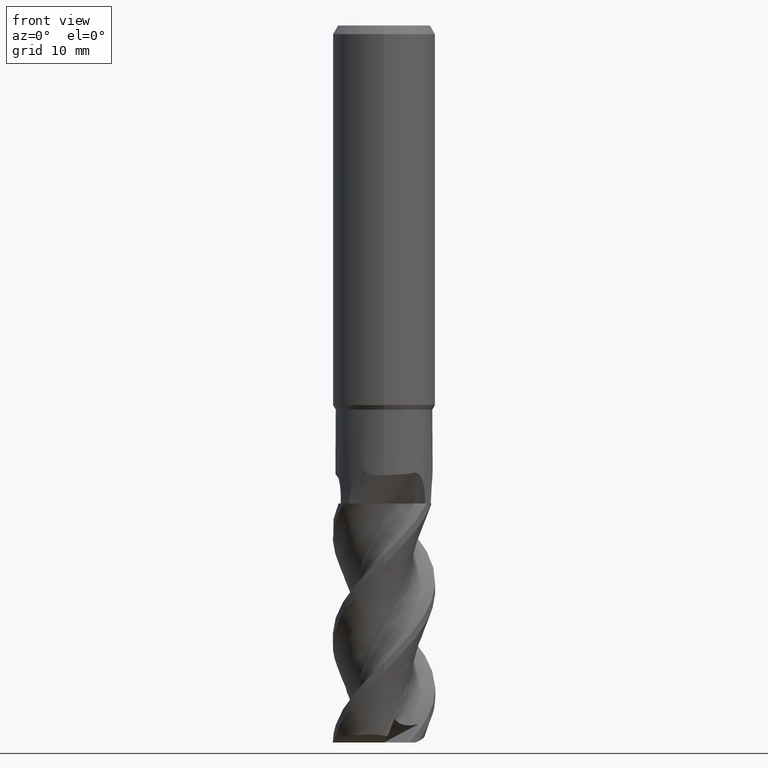
[diagram: clean part render]
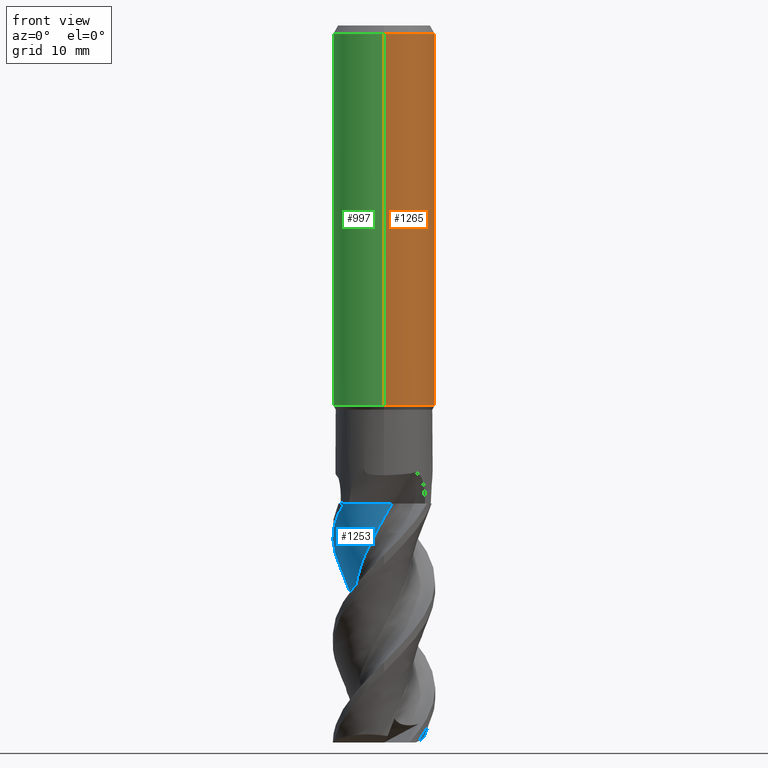
[diagram: same view with three faces highlighted in distinct colors, each labeled with its STEP entity id]
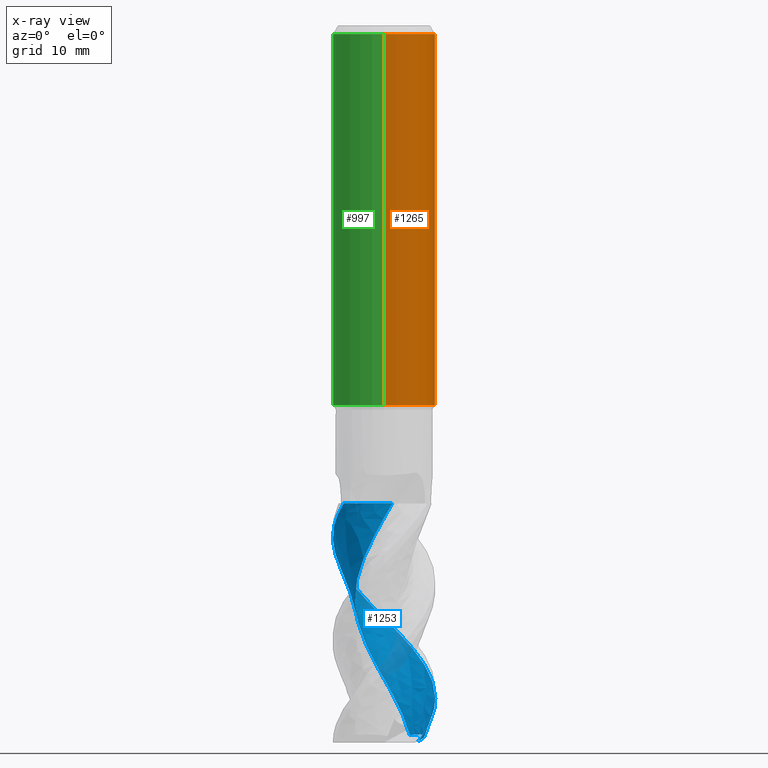
[diagram: x-ray of the same camera — body ghosted, the three highlighted faces saturated]
A machine part, front view with three faces highlighted in distinct colors.
The next image is the same camera in x-ray (body ghosted, the three faces saturated) — at least one of them is partly hidden behind the body in this view.
Their STEP definitions:

[orange] entity #1265 — the highlighted cylindrical surface (partial cylindrical patch) has radius 6 mm, axis along (-0, -0, 1).
#471=VERTEX_POINT('',#1340);
#485=VERTEX_POINT('',#1355);
#497=EDGE_CURVE('',#945,#771,#1367,.T.);
#503=VERTEX_POINT('',#1374);
#521=EDGE_CURVE('',#529,#679,#1395,.T.);
#529=VERTEX_POINT('',#1403);
#541=EDGE_CURVE('',#1009,#529,#1415,.T.);
#543=EDGE_CURVE('',#861,#945,#1417,.T.);
#547=EDGE_CURVE('',#1215,#1045,#1421,.T.);
#575=VERTEX_POINT('',#1454);
#579=VERTEX_POINT('',#1458);
#641=EDGE_CURVE('',#817,#659,#1524,.T.);
#659=VERTEX_POINT('',#1543);
#667=EDGE_CURVE('',#659,#503,#1551,.T.);
#679=VERTEX_POINT('',#1564);
#713=VERTEX_POINT('',#1598);
#761=EDGE_CURVE('',#503,#1215,#1652,.T.);
#771=VERTEX_POINT('',#1662);
#803=EDGE_CURVE('',#579,#1009,#1697,.T.);
#817=VERTEX_POINT('',#1713);
#823=VERTEX_POINT('',#1720);
#861=VERTEX_POINT('',#1762);
#885=EDGE_CURVE('',#471,#919,#1788,.T.);
#911=EDGE_CURVE('',#713,#485,#1817,.T.);
#915=EDGE_CURVE('',#1041,#579,#1821,.T.);
#919=VERTEX_POINT('',#1825);
#945=VERTEX_POINT('',#1852);
#953=EDGE_CURVE('',#861,#713,#1861,.T.);
#959=EDGE_CURVE('',#575,#817,#1867,.T.);
#961=EDGE_CURVE('',#771,#823,#1869,.T.);
#1009=VERTEX_POINT('',#1923);
#1011=EDGE_CURVE('',#1045,#1041,#1925,.T.);
#1041=VERTEX_POINT('',#1957);
#1045=VERTEX_POINT('',#1961);
#1083=EDGE_CURVE('',#471,#823,#2004,.T.);
#1133=EDGE_CURVE('',#679,#575,#2057,.T.);
#1215=VERTEX_POINT('',#2148);
#1225=EDGE_CURVE('',#485,#919,#2159,.T.);
#1265=ADVANCED_FACE('',(#2202,#2203),#2204,.T.);
#1340=CARTESIAN_POINT('',(0.0,6.0,-1.0));
#1355=CARTESIAN_POINT('',(7.34763812293426E-016,-6.0,-44.48));
#1367=LINE('',#3065,#3066);
#1374=CARTESIAN_POINT('',(1.16473800375166,5.88586318075918,-34.2399428821325));
#1395=B_SPLINE_CURVE_WITH_KNOTS('',3,(#3165,#3166,#3167,#3168,#3169,#3170,#3171,#3172,#3173,#3174,#3175,#3176,#3177,#3178,#3179,#3180,#3181,#3182,#3183,#3184,#3185,#3186,#3187,#3188),.UNSPECIFIED.,.F.,.F.,(4,2,2,2,2,2,2,2,2,2,2,4),(4.48073098737521,4.77923143833492,5.07773188929462,5.37623234025433,5.67473279121403,5.97323324217374,6.27097284431785,6.56871244646196,6.86645204860607,7.16419165075017,7.46398622242374,7.7637807940973),.UNSPECIFIED.);
#1403=CARTESIAN_POINT('',(0.0244948463970805,5.99995,-34.4830834817554));
#1415=LINE('',#3226,#3227);
#1417=ELLIPSE('',#3230,8.48528137423857,6.0);
#1421=B_SPLINE_CURVE_WITH_KNOTS('',3,(#3241,#3242,#3243,#3244,#3245,#3246,#3247,#3248,#3249,#3250),.UNSPECIFIED.,.F.,.F.,(4,2,2,2,4),(10.7411366580096,11.1537143579779,11.5662920579463,11.9794511602567,12.3926102625672),.UNSPECIFIED.);
#1454=CARTESIAN_POINT('',(0.0244948463969634,5.99995,-34.7518594477573));
#1458=CARTESIAN_POINT('',(1.06590008682601,5.90456238894165,-32.4801003691609));
#1524=B_SPLINE_CURVE_WITH_KNOTS('',3,(#4101,#4102,#4103,#4104,#4105,#4106,#4107,#4108,#4109,#4110,#4111,#4112,#4113,#4114,#4115,#4116),.UNSPECIFIED.,.F.,.F.,(4,2,2,2,2,2,2,4),(7.84932439692473,8.26261089147826,8.67595374936495,9.08929660725164,9.50263946513833,9.91598232302503,10.3285600608663,10.7411377987076),.UNSPECIFIED.);
#1543=CARTESIAN_POINT('',(0.386800946335366,5.987519104597,-36.4798438705536));
#1551=ELLIPSE('',#4164,18.2879674402186,6.0);
#1564=CARTESIAN_POINT('',(0.764163013666123,5.95113895725387,-34.3871907322697));
#1598=CARTESIAN_POINT('',(0.0,6.0,-44.48));
#1652=LINE('',#4477,#4478);
#1662=CARTESIAN_POINT('',(4.07921561087423,4.4,-18.5));
#1697=B_SPLINE_CURVE_WITH_KNOTS('',3,(#4693,#4694,#4695,#4696,#4697,#4698,#4699,#4700,#4701,#4702,#4703,#4704,#4705,#4706,#4707,#4708,#4709,#4710,#4711,#4712,#4713,#4714,#4715,#4716,#4717,#4718,#4719),.UNSPECIFIED.,.F.,.F.,(4,2,3,2,2,2,2,2,2,2,2,2,4),(-0.72360181149793,-0.361800905748964,0.0,0.361800905748964,0.723601811497929,1.08633909978848,1.44907638807903,1.81023671496141,2.1713970418438,2.53302252441847,2.89464800699314,3.25627348956782,3.61789897214249),.UNSPECIFIED.);
#1713=CARTESIAN_POINT('',(0.0244948463968965,5.99995,-36.5208686000526));
#1720=CARTESIAN_POINT('',(-7.34763812293426E-016,6.0,-16.9));
#1762=CARTESIAN_POINT('',(-7.34763812293427E-016,6.0,-28.1));
#1788=CIRCLE('',#4952,6.0);
#1817=CIRCLE('',#5510,6.0);
#1821=B_SPLINE_CURVE_WITH_KNOTS('',3,(#5515,#5516,#5517,#5518,#5519,#5520,#5521,#5522,#5523,#5524),.UNSPECIFIED.,.F.,.F.,(4,2,2,2,4),(0.826318233423224,1.23947735013484,1.65263646684645,2.06521418068484,2.47779189452323),.UNSPECIFIED.);
#1825=CARTESIAN_POINT('',(7.34763812293426E-016,-6.0,-1.0));
#1852=CARTESIAN_POINT('',(4.07921561087423,4.4,-26.5));
#1861=LINE('',#5696,#5697);
#1867=LINE('',#5720,#5721);
#1869=ELLIPSE('',#5724,8.48528137423857,6.0);
#1923=CARTESIAN_POINT('',(0.0244948463970288,5.99995,-33.8495768693841));
#1925=LINE('',#5832,#5833);
#1957=CARTESIAN_POINT('',(1.78293189712495,5.72897493887121,-33.1668255264546));
#1961=CARTESIAN_POINT('',(1.78293189712495,5.72897493887121,-35.53362882336));
#2004=LINE('',#6321,#6322);
#2057=ELLIPSE('',#6685,6.68957059225716,6.0);
#2148=CARTESIAN_POINT('',(1.16473800375166,5.88586318075918,-36.1583829226563));
#2159=LINE('',#7219,#7220);
#2202=FACE_OUTER_BOUND('',#7797,.T.);
#2203=FACE_BOUND('',#7798,.T.);
#2204=CYLINDRICAL_SURFACE('',#7799,6.0);
#3065=CARTESIAN_POINT('',(4.07921561087423,4.4,-22.5));
#3066=VECTOR('',#9296,1.0);
#3165=CARTESIAN_POINT('',(-1.35048891683626,5.84603965822183,-32.6107881553991));
#3166=CARTESIAN_POINT('',(-1.37056791947492,5.84140122399383,-32.7128902379));
#3167=CARTESIAN_POINT('',(-1.3801338571413,5.83911213596488,-32.8156653721101));
#3168=CARTESIAN_POINT('',(-1.3801338571413,5.83911213596488,-33.0146656727499));
#3169=CARTESIAN_POINT('',(-1.37056791947492,5.84140122399383,-33.1174408069601));
#3170=CARTESIAN_POINT('',(-1.33040991419761,5.85067809244983,-33.3216449719619));
#3171=CARTESIAN_POINT('',(-1.29982790681991,5.85765752699186,-33.4230763600927));
#3172=CARTESIAN_POINT('',(-1.21910237433344,5.87498881723457,-33.6174231884883));
#3173=CARTESIAN_POINT('',(-1.16889486540318,5.88533454584315,-33.7105002458833));
#3174=CARTESIAN_POINT('',(-1.05298647093662,5.90717338619679,-33.8825453657203));
#3175=CARTESIAN_POINT('',(-0.987276929230589,5.91864007661348,-33.9615109491245));
#3176=CARTESIAN_POINT('',(-0.847471723835943,5.94026785846467,-34.1011067518695));
#3177=CARTESIAN_POINT('',(-0.768578560058691,5.95119907739388,-34.1665924311689));
#3178=CARTESIAN_POINT('',(-0.596687956072494,5.97088326336904,-34.2821202967626));
#3179=CARTESIAN_POINT('',(-0.503692932423599,5.97961185586931,-34.33217023021));
#3180=CARTESIAN_POINT('',(-0.309568789074216,5.9927983180408,-34.4126193312277));
#3181=CARTESIAN_POINT('',(-0.2082742472406,5.99725030577251,-34.4430840806747));
#3182=CARTESIAN_POINT('',(-0.00444954483130944,6.00086407059041,-34.483066242046));
#3183=CARTESIAN_POINT('',(0.0980824834947631,6.00001914171547,-34.4925747376966));
#3184=CARTESIAN_POINT('',(0.297152852246949,5.99347032126369,-34.4925747376966));
#3185=CARTESIAN_POINT('',(0.400197319943434,5.98751817149859,-34.4829368958837));
#3186=CARTESIAN_POINT('',(0.604724970802942,5.9703299287894,-34.442604298656));
#3187=CARTESIAN_POINT('',(0.706210942313637,5.95910027839327,-34.4119209385626));
#3188=CARTESIAN_POINT('',(0.803358978589674,5.94597463428153,-34.3714905127439));
#3226=CARTESIAN_POINT('',(0.0244948463969634,5.99995,-34.5009315682017));
#3227=VECTOR('',#9337,1.0);
#3230=AXIS2_PLACEMENT_3D('',#9338,#9339,#9340);
#3241=CARTESIAN_POINT('',(0.796240708344118,5.9469320438673,-36.3551992755855));
#3242=CARTESIAN_POINT('',(0.929810034827349,5.92904831248428,-36.2996351770826));
#3243=CARTESIAN_POINT('',(1.05756685725398,5.90728554397455,-36.230634219235));
#3244=CARTESIAN_POINT('',(1.29348817299666,5.86015004092385,-36.071686780875));
#3245=CARTESIAN_POINT('',(1.40165333245614,5.8348207190434,-35.9817284183618));
#3246=CARTESIAN_POINT('',(1.59316990801525,5.78546472399645,-35.790298201895));
#3247=CARTESIAN_POINT('',(1.68323127476596,5.75965772694447,-35.6820708173914));
#3248=CARTESIAN_POINT('',(1.84231551619293,5.7107616125897,-35.4460904659257));
#3249=CARTESIAN_POINT('',(1.91135307429295,5.68772303408497,-35.3183369287594));
#3250=CARTESIAN_POINT('',(1.96695701804848,5.66842836147286,-35.1847611971254));
#4101=CARTESIAN_POINT('',(-1.83867296836211,5.71132924242811,-35.563684543987));
#4102=CARTESIAN_POINT('',(-1.75923837634909,5.73690196474795,-35.6815712259734));
#4103=CARTESIAN_POINT('',(-1.66932242375642,5.76395571007449,-35.7896904672389));
#4104=CARTESIAN_POINT('',(-1.47802881912804,5.81594844126011,-35.9810736491614));
#4105=CARTESIAN_POINT('',(-1.36990451777916,5.84276505606579,-36.0710816821051));
#4106=CARTESIAN_POINT('',(-1.13403387865074,5.89308994077547,-36.2301491879183));
#4107=CARTESIAN_POINT('',(-1.006286517385,5.91655495272609,-36.2992208256614));
#4108=CARTESIAN_POINT('',(-0.739083958679231,5.9558366303242,-36.410502636622));
#4109=CARTESIAN_POINT('',(-0.59939436609518,5.97165703351199,-36.452800595575));
#4110=CARTESIAN_POINT('',(-0.317651532993812,5.9932511073374,-36.508438815537));
#4111=CARTESIAN_POINT('',(-0.175594126727357,5.99901244319148,-36.5217627672426));
#4112=CARTESIAN_POINT('',(0.0997072703959471,6.00074760649625,-36.5217627672426));
#4113=CARTESIAN_POINT('',(0.241573602509127,5.99679337111965,-36.5084872042666));
#4114=CARTESIAN_POINT('',(0.523053916178747,5.97882121676958,-36.4529800804109));
#4115=CARTESIAN_POINT('',(0.662671735934631,5.96481573619486,-36.4107639578146));
#4116=CARTESIAN_POINT('',(0.796241073646248,5.94693199495662,-36.3551998543553));
#4164=AXIS2_PLACEMENT_3D('',#9475,#9476,#9477);
#4477=CARTESIAN_POINT('',(1.16473800375166,5.88586318075918,-35.1991629023944));
#4478=VECTOR('',#9590,1.0);
#4693=CARTESIAN_POINT('',(0.886909749161197,5.93408721682137,-32.2316507490255));
#4694=CARTESIAN_POINT('',(0.971658559190707,5.92142064433961,-32.3165131668702));
#4695=CARTESIAN_POINT('',(1.04526597799041,5.90845929097393,-32.4240127269506));
#4696=CARTESIAN_POINT('',(1.14304048091452,5.89032517361881,-32.6599202927756));
#4697=CARTESIAN_POINT('',(1.16719158254652,5.88537711702764,-32.7883521414233));
#4698=CARTESIAN_POINT('',(1.16719158254652,5.88537711702764,-32.9089524433396));
#4699=CARTESIAN_POINT('',(1.16719158254652,5.88537711702764,-33.0295527452559));
#4700=CARTESIAN_POINT('',(1.14304048091452,5.89032517361881,-33.1579845939036));
#4701=CARTESIAN_POINT('',(1.04526597799041,5.90845929097393,-33.3938921597286));
#4702=CARTESIAN_POINT('',(0.971658559190708,5.92142064433961,-33.501391719809));
#4703=CARTESIAN_POINT('',(0.801941599420617,5.94678657185604,-33.6713361892397));
#4704=CARTESIAN_POINT('',(0.694326980995093,5.96087125230195,-33.7451478025612));
#4705=CARTESIAN_POINT('',(0.458138811076711,5.98365982255002,-33.8432096222497));
#4706=CARTESIAN_POINT('',(0.329539378089051,5.99216351695107,-33.8674439102268));
#4707=CARTESIAN_POINT('',(0.0883861889466779,6.00055671228507,-33.8674439102268));
#4708=CARTESIAN_POINT('',(-0.0399701615956457,6.0010284663397,-33.8433978221703));
#4709=CARTESIAN_POINT('',(-0.276026097474078,5.9948102439904,-33.7456516538263));
#4710=CARTESIAN_POINT('',(-0.383733500239096,5.98832392855074,-33.6719576027793));
#4711=CARTESIAN_POINT('',(-0.553907325011259,5.9749878911291,-33.5019293366432));
#4712=CARTESIAN_POINT('',(-0.627720262405307,5.96727714229006,-33.3941885759249));
#4713=CARTESIAN_POINT('',(-0.725665790869139,5.95615970246247,-33.1579775058879));
#4714=CARTESIAN_POINT('',(-0.749791351227836,5.95296673345517,-33.0294942708645));
#4715=CARTESIAN_POINT('',(-0.749791351227836,5.95296673345517,-32.7884106158147));
#4716=CARTESIAN_POINT('',(-0.725665790869142,5.95615970246247,-32.6599273807913));
#4717=CARTESIAN_POINT('',(-0.627720262405304,5.96727714229006,-32.4237163107544));
#4718=CARTESIAN_POINT('',(-0.55390732501126,5.9749878911291,-32.315975550036));
#4719=CARTESIAN_POINT('',(-0.468765654132244,5.98166020110688,-32.2309067053129));
#4952=AXIS2_PLACEMENT_3D('',#9761,#9762,#9763);
#5510=AXIS2_PLACEMENT_3D('',#9790,#9791,#9792);
#5515=CARTESIAN_POINT('',(1.96695702867684,5.66842835778479,-33.5156931711774));
#5516=CARTESIAN_POINT('',(1.91135308296987,5.68772303119087,-33.3821174349185));
#5517=CARTESIAN_POINT('',(1.84231552244884,5.71076161061434,-33.2543638933333));
#5518=CARTESIAN_POINT('',(1.68323127543375,5.75965772679176,-33.0183835337032));
#5519=CARTESIAN_POINT('',(1.59316990551509,5.78546472474429,-32.910156145454));
#5520=CARTESIAN_POINT('',(1.40165332330866,5.83482072129744,-32.718725922476));
#5521=CARTESIAN_POINT('',(1.29348816015849,5.86015004384041,-32.6287675569457));
#5522=CARTESIAN_POINT('',(1.05756683636552,5.90728554779634,-32.4698201132508));
#5523=CARTESIAN_POINT('',(0.929810009579058,5.92904831654607,-32.400819153085));
#5524=CARTESIAN_POINT('',(0.796240678545876,5.94693204785701,-32.3452550527192));
#5696=CARTESIAN_POINT('',(-7.34763812293426E-016,6.0,-22.74));
#5697=VECTOR('',#9828,1.0);
#5720=CARTESIAN_POINT('',(0.0244948463969634,5.99995,-34.5009315682017));
#5721=VECTOR('',#9829,1.0);
#5724=AXIS2_PLACEMENT_3D('',#9830,#9831,#9832);
#5832=CARTESIAN_POINT('',(1.78293189712495,5.72897493887121,-34.3502271749073));
#5833=VECTOR('',#9884,1.0);
#6321=CARTESIAN_POINT('',(-7.34763812293426E-016,6.0,-22.74));
#6322=VECTOR('',#9973,1.0);
#6685=AXIS2_PLACEMENT_3D('',#10022,#10023,#10024);
#7219=CARTESIAN_POINT('',(7.34763812293426E-016,-6.0,-22.74));
#7220=VECTOR('',#10148,1.0);
#7797=EDGE_LOOP('',(#10185,#10186,#10187,#10188,#10189,#10190,#10191,#10192));
#7798=EDGE_LOOP('',(#10193,#10194,#10195,#10196,#10197,#10198,#10199,#10200,#10201,#10202,#10203));
#7799=AXIS2_PLACEMENT_3D('',#10204,#10205,#10206);
#9296=DIRECTION('',(-0.0,-0.0,1.0));
#9337=DIRECTION('',(0.0,0.0,-1.0));
#9338=CARTESIAN_POINT('',(0.0,0.0,-22.1));
#9339=DIRECTION('',(0.0,-0.707106781186548,-0.707106781186548));
#9340=DIRECTION('',(0.0,0.707106781186548,-0.707106781186548));
#9475=CARTESIAN_POINT('',(0.0,0.0,-37.5935532815646));
#9476=DIRECTION('',(0.944648353914092,0.0,-0.328084573619969));
#9477=DIRECTION('',(0.328084573619969,-0.0,0.944648353914092));
#9590=DIRECTION('',(0.0,0.0,-1.0));
#9761=CARTESIAN_POINT('',(0.0,0.0,-1.0));
#9762=DIRECTION('',(0.0,0.0,-1.0));
#9763=DIRECTION('',(0.0,1.0,0.0));
#9790=CARTESIAN_POINT('',(0.0,0.0,-44.48));
#9791=DIRECTION('',(0.0,0.0,-1.0));
#9792=DIRECTION('',(0.0,1.0,0.0));
#9828=DIRECTION('',(0.0,0.0,-1.0));
#9829=DIRECTION('',(0.0,0.0,-1.0));
#9830=CARTESIAN_POINT('',(0.0,0.0,-22.9));
#9831=DIRECTION('',(0.0,-0.707106781186548,0.707106781186547));
#9832=DIRECTION('',(0.0,0.707106781186547,0.707106781186548));
#9884=DIRECTION('',(-0.0,-0.0,1.0));
#9973=DIRECTION('',(0.0,0.0,-1.0));
#10022=CARTESIAN_POINT('',(0.0,0.0,-34.7639358146566));
#10023=DIRECTION('',(-0.442195774284071,0.0,0.896918556617774));
#10024=DIRECTION('',(0.896918556617774,-0.0,0.442195774284071));
#10148=DIRECTION('',(-0.0,-0.0,1.0));
#10185=ORIENTED_EDGE('',*,*,#1083,.F.);
#10186=ORIENTED_EDGE('',*,*,#885,.T.);
#10187=ORIENTED_EDGE('',*,*,#1225,.F.);
#10188=ORIENTED_EDGE('',*,*,#911,.F.);
#10189=ORIENTED_EDGE('',*,*,#953,.F.);
#10190=ORIENTED_EDGE('',*,*,#543,.T.);
#10191=ORIENTED_EDGE('',*,*,#497,.T.);
#10192=ORIENTED_EDGE('',*,*,#961,.T.);
#10193=ORIENTED_EDGE('',*,*,#1133,.T.);
#10194=ORIENTED_EDGE('',*,*,#959,.T.);
#10195=ORIENTED_EDGE('',*,*,#641,.T.);
#10196=ORIENTED_EDGE('',*,*,#667,.T.);
#10197=ORIENTED_EDGE('',*,*,#761,.T.);
#10198=ORIENTED_EDGE('',*,*,#547,.T.);
#10199=ORIENTED_EDGE('',*,*,#1011,.T.);
#10200=ORIENTED_EDGE('',*,*,#915,.T.);
#10201=ORIENTED_EDGE('',*,*,#803,.T.);
#10202=ORIENTED_EDGE('',*,*,#541,.T.);
#10203=ORIENTED_EDGE('',*,*,#521,.T.);
#10204=CARTESIAN_POINT('',(0.0,0.0,-22.74));
#10205=DIRECTION('',(-0.0,-0.0,1.0));
#10206=DIRECTION('',(0.0,1.0,0.0));

[blue] entity #1253 — the highlighted face is a freeform B-spline surface patch.
#489=VERTEX_POINT('',#1359);
#491=VERTEX_POINT('',#1361);
#499=EDGE_CURVE('',#1183,#1251,#1369,.T.);
#539=EDGE_CURVE('',#491,#745,#1413,.T.);
#599=EDGE_CURVE('',#489,#1201,#1479,.T.);
#639=EDGE_CURVE('',#1201,#1183,#1522,.T.);
#745=VERTEX_POINT('',#1633);
#1099=EDGE_CURVE('',#491,#1251,#2023,.T.);
#1183=VERTEX_POINT('',#2112);
#1201=VERTEX_POINT('',#2134);
#1251=VERTEX_POINT('',#2186);
#1253=ADVANCED_FACE('',(#2188),#2189,.T.);
#1293=EDGE_CURVE('',#745,#489,#2238,.T.);
#1359=CARTESIAN_POINT('',(1.51133223864427E-012,5.99994800801195,-69.4422433467357));
#1361=CARTESIAN_POINT('',(3.02220816699757,1.53791280155392,-83.1651346450142));
#1369=B_SPLINE_CURVE_WITH_KNOTS('',3,(#3069,#3070,#3071,#3072,#3073,#3074,#3075,#3076,#3077,#3078),.UNSPECIFIED.,.F.,.F.,(4,2,2,2,4),(0.0,1.93791492952089,3.87570369573995,5.34214899278467,6.80855102386848),.UNSPECIFIED.);
#1413=B_SPLINE_CURVE_WITH_KNOTS('',3,(#3212,#3213,#3214,#3215,#3216,#3217,#3218,#3219,#3220,#3221,#3222,#3223),.UNSPECIFIED.,.F.,.F.,(4,2,2,2,2,4),(0.0,1.77820283544753,3.43250435228684,5.18398992462381,6.45930602206331,7.85085966180443),.UNSPECIFIED.);
#1479=B_SPLINE_CURVE_WITH_KNOTS('',3,(#3896,#3897,#3898,#3899,#3900,#3901,#3902,#3903,#3904,#3905,#3906,#3907,#3908,#3909,#3910,#3911,#3912,#3913,#3914,#3915,#3916,#3917,#3918,#3919,#3920,#3921,#3922,#3923,#3924,#3925,#3926,#3927,#3928,#3929,#3930,#3931,#3932,#3933,#3934,#3935,#3936,#3937,#3938,#3939,#3940,#3941,#3942,#3943,#3944,#3945,#3946,#3947,#3948,#3949),.UNSPECIFIED.,.F.,.F.,(4,2,2,2,2,2,2,2,2,2,2,2,2,2,2,2,2,2,2,2,2,2,2,2,2,2,4),(0.0,1.18059921161384,2.48756353247875,4.72647815870393,5.67929676286631,6.98033490504481,8.24578003538569,8.89285700671015,10.1482256069459,10.7901192620635,11.4479148656571,12.7154864511401,13.401013724938,14.0622460623489,15.3435769783495,16.0177174230738,16.6863460741414,17.9810929260831,18.6759022496566,19.3514021954669,20.6601073138367,21.4826283543317,22.1690558772801,22.9374421493445,24.0874019474832,24.6788411841143,25.2620073710647),.UNSPECIFIED.);
#1522=B_SPLINE_CURVE_WITH_KNOTS('',3,(#4089,#4090,#4091,#4092,#4093,#4094,#4095,#4096,#4097,#4098),.UNSPECIFIED.,.F.,.F.,(4,2,2,2,4),(0.0,1.93791492952089,3.87570369573995,5.34214899278467,6.80855102386848),.UNSPECIFIED.);
#1633=CARTESIAN_POINT('',(4.03280695978437,-4.44257376949047,-83.8523524931989));
#2023=B_SPLINE_CURVE_WITH_KNOTS('',3,(#6573,#6574,#6575,#6576,#6577,#6578,#6579,#6580,#6581,#6582,#6583,#6584,#6585,#6586,#6587,#6588,#6589,#6590,#6591,#6592,#6593,#6594,#6595,#6596,#6597,#6598,#6599,#6600,#6601,#6602,#6603,#6604,#6605,#6606,#6607,#6608,#6609,#6610,#6611,#6612,#6613,#6614,#6615,#6616,#6617,#6618,#6619,#6620,#6621,#6622),.UNSPECIFIED.,.F.,.F.,(4,2,2,2,2,2,2,2,2,2,2,2,2,2,2,2,2,2,2,2,2,2,2,2,4),(0.0,1.83214784040065,2.76415768361599,4.57503475665012,5.57096148692051,6.48311902719868,8.26569298190017,9.26848929931933,10.2645674497098,11.9602507043841,12.8251746749024,13.307032079323,16.2993904435203,16.6778404249926,19.5314257943155,19.8889994273925,22.6658765884147,23.5602292024459,25.0746939739677,25.9977515173039,26.0314470751729,28.2463554782337,29.3648101823875,29.5086569910386,30.4991604532709),.UNSPECIFIED.);
#2112=CARTESIAN_POINT('',(0.486607131311809,-3.60197071302276,-56.0));
#2134=CARTESIAN_POINT('',(-4.70488016247903,-3.72329191263741,-56.0));
#2186=CARTESIAN_POINT('',(0.965054254384971,-3.25009486042902,-56.0));
#2188=FACE_OUTER_BOUND('',#7390,.T.);
#2189=B_SPLINE_SURFACE_WITH_KNOTS('',3,3,((#7391,#7392,#7393,#7394,#7395,#7396,#7397,#7398,#7399,#7400,#7401,#7402,#7403,#7404,#7405,#7406,#7407,#7408,#7409,#7410,#7411,#7412,#7413,#7414,#7415,#7416,#7417,#7418,#7419,#7420,#7421,#7422,#7423,#7424,#7425,#7426,#7427,#7428,#7429,#7430,#7431,#7432,#7433,#7434,#7435,#7436,#7437,#7438,#7439,#7440,#7441,#7442,#7443,#7444,#7445,#7446),(#7447,#7448,#7449,#7450,#7451,#7452,#7453,#7454,#7455,#7456,#7457,#7458,#7459,#7460,#7461,#7462,#7463,#7464,#7465,#7466,#7467,#7468,#7469,#7470,#7471,#7472,#7473,#7474,#7475,#7476,#7477,#7478,#7479,#7480,#7481,#7482,#7483,#7484,#7485,#7486,#7487,#7488,#7489,#7490,#7491,#7492,#7493,#7494,#7495,#7496,#7497,#7498,#7499,#7500,#7501,#7502),(#7503,#7504,#7505,#7506,#7507,#7508,#7509,#7510,#7511,#7512,#7513,#7514,#7515,#7516,#7517,#7518,#7519,#7520,#7521,#7522,#7523,#7524,#7525,#7526,#7527,#7528,#7529,#7530,#7531,#7532,#7533,#7534,#7535,#7536,#7537,#7538,#7539,#7540,#7541,#7542,#7543,#7544,#7545,#7546,#7547,#7548,#7549,#7550,#7551,#7552,#7553,#7554,#7555,#7556,#7557,#7558),(#7559,#7560,#7561,#7562,#7563,#7564,#7565,#7566,#7567,#7568,#7569,#7570,#7571,#7572,#7573,#7574,#7575,#7576,#7577,#7578,#7579,#7580,#7581,#7582,#7583,#7584,#7585,#7586,#7587,#7588,#7589,#7590,#7591,#7592,#7593,#7594,#7595,#7596,#7597,#7598,#7599,#7600,#7601,#7602,#7603,#7604,#7605,#7606,#7607,#7608,#7609,#7610,#7611,#7612,#7613,#7614),(#7615,#7616,#7617,#7618,#7619,#7620,#7621,#7622,#7623,#7624,#7625,#7626,#7627,#7628,#7629,#7630,#7631,#7632,#7633,#7634,#7635,#7636,#7637,#7638,#7639,#7640,#7641,#7642,#7643,#7644,#7645,#7646,#7647,#7648,#7649,#7650,#7651,#7652,#7653,#7654,#7655,#7656,#7657,#7658,#7659,#7660,#7661,#7662,#7663,#7664,#7665,#7666,#7667,#7668,#7669,#7670),(#7671,#7672,#7673,#7674,#7675,#7676,#7677,#7678,#7679,#7680,#7681,#7682,#7683,#7684,#7685,#7686,#7687,#7688,#7689,#7690,#7691,#7692,#7693,#7694,#7695,#7696,#7697,#7698,#7699,#7700,#7701,#7702,#7703,#7704,#7705,#7706,#7707,#7708,#7709,#7710,#7711,#7712,#7713,#7714,#7715,#7716,#7717,#7718,#7719,#7720,#7721,#7722,#7723,#7724,#7725,#7726),(#7727,#7728,#7729,#7730,#7731,#7732,#7733,#7734,#7735,#7736,#7737,#7738,#7739,#7740,#7741,#7742,#7743,#7744,#7745,#7746,#7747,#7748,#7749,#7750,#7751,#7752,#7753,#7754,#7755,#7756,#7757,#7758,#7759,#7760,#7761,#7762,#7763,#7764,#7765,#7766,#7767,#7768,#7769,#7770,#7771,#7772,#7773,#7774,#7775,#7776,#7777,#7778,#7779,#7780,#7781,#7782)),.UNSPECIFIED.,.F.,.F.,.F.,(4,1,1,1,4),(4,1,1,2,1,2,1,2,1,1,1,2,1,2,1,2,1,2,1,2,1,2,1,2,1,2,1,2,1,2,1,2,1,2,1,2,1,4),(-1.37901021717762,-1.03425766288322,-0.68950510858881,-0.344752554294405,0.0),(0.0,0.816539757988867,1.2248096369833,1.63307951597773,2.4496192739666,3.26615903195547,4.89923854793321,6.53231806391094,7.34885782189981,8.16539757988867,8.98193733787754,9.79847709586641,11.4315566118441,13.0646361278219,14.6977156437996,16.3307951597773,17.9638746757551,19.5969541917328,21.2300337077106,22.8631132236883,24.496192739666,26.1292722556438,27.7623517716215,29.3954312875992,31.028510803577,32.6615903195547,34.2946698355324,35.9277493515102,37.5608288674879,39.1939083834656,40.8269878994434,42.4600674154211,44.0931469313988,45.7262264473766,47.3593059633543,48.992385479332,50.6254649953098,52.2585445112875),.UNSPECIFIED.);
#2238=B_SPLINE_CURVE_WITH_KNOTS('',3,(#8980,#8981,#8982,#8983,#8984,#8985,#8986,#8987,#8988,#8989,#8990,#8991,#8992,#8993,#8994,#8995,#8996,#8997,#8998,#8999,#9000,#9001,#9002,#9003,#9004,#9005,#9006,#9007,#9008,#9009,#9010,#9011,#9012,#9013,#9014,#9015,#9016,#9017,#9018,#9019,#9020,#9021,#9022,#9023,#9024,#9025,#9026,#9027,#9028,#9029,#9030,#9031,#9032,#9033),.UNSPECIFIED.,.F.,.F.,(4,2,2,2,2,2,2,2,2,2,2,2,2,2,2,2,2,2,2,2,2,2,2,2,2,2,4),(0.0,1.18059921161384,2.48756353247875,4.72647815870393,5.67929676286631,6.98033490504481,8.24578003538569,8.89285700671015,10.1482256069459,10.7901192620635,11.4479148656571,12.7154864511401,13.401013724938,14.0622460623489,15.3435769783495,16.0177174230738,16.6863460741414,17.9810929260831,18.6759022496566,19.3514021954669,20.6601073138367,21.4826283543317,22.1690558772801,22.9374421493445,24.0874019474832,24.6788411841143,25.2620073710647),.UNSPECIFIED.);
#3069=CARTESIAN_POINT('',(-5.26793203793705,-3.34128387387651,-56.0));
#3070=CARTESIAN_POINT('',(-4.75950807767454,-3.73976152747258,-56.0));
#3071=CARTESIAN_POINT('',(-4.17811559857989,-4.03512480177383,-56.0));
#3072=CARTESIAN_POINT('',(-2.93487483078719,-4.38634869814577,-56.0));
#3073=CARTESIAN_POINT('',(-2.28492021780709,-4.43886619811464,-56.0));
#3074=CARTESIAN_POINT('',(-1.15755342000592,-4.30969084734725,-56.0));
#3075=CARTESIAN_POINT('',(-0.682798773135695,-4.18256680217532,-56.0));
#3076=CARTESIAN_POINT('',(0.214113223123022,-3.79362055347184,-56.0));
#3077=CARTESIAN_POINT('',(0.631365207906651,-3.53393024188712,-56.0));
#3078=CARTESIAN_POINT('',(1.00387877360848,-3.21745067102826,-56.0));
#3212=CARTESIAN_POINT('',(2.98146552728931,1.56963730830636,-83.1714452053008));
#3213=CARTESIAN_POINT('',(3.44745067550856,1.21062154598488,-83.098647891257));
#3214=CARTESIAN_POINT('',(3.84723749434644,0.772547227021889,-83.0573218809008));
#3215=CARTESIAN_POINT('',(4.43410209161071,-0.207536062081141,-83.0514089905593));
#3216=CARTESIAN_POINT('',(4.62400931268249,-0.723793665247987,-83.0818423740582));
#3217=CARTESIAN_POINT('',(4.80579974740678,-1.83462858047781,-83.2111546695465));
#3218=CARTESIAN_POINT('',(4.78209801564163,-2.41131879920624,-83.3115130748332));
#3219=CARTESIAN_POINT('',(4.56073855968863,-3.37019284492566,-83.5295796586701));
#3220=CARTESIAN_POINT('',(4.41348352875874,-3.75695676629187,-83.633849169893));
#3221=CARTESIAN_POINT('',(4.01129416569543,-4.51342333132057,-83.8699161596544));
#3222=CARTESIAN_POINT('',(3.74914968434254,-4.8758885116072,-84.0025666955283));
#3223=CARTESIAN_POINT('',(3.44656251329726,-5.19963039957156,-84.1403063675401));
#3896=CARTESIAN_POINT('',(3.92295795505377,-4.53986793672243,-84.0));
#3897=CARTESIAN_POINT('',(4.13269085384835,-4.3586337375716,-83.720653344698));
#3898=CARTESIAN_POINT('',(4.33105494261891,-4.16184401789443,-83.442194315436));
#3899=CARTESIAN_POINT('',(4.72097702949183,-3.71606667719358,-82.8616104547796));
#3900=CARTESIAN_POINT('',(4.90762340374574,-3.4663912083621,-82.5582294236346));
#3901=CARTESIAN_POINT('',(5.36648254098288,-2.73793200995145,-81.6953437118308));
#3902=CARTESIAN_POINT('',(5.59212205621579,-2.24112907320244,-81.140225778415));
#3903=CARTESIAN_POINT('',(5.81408433001174,-1.49987496671529,-80.3627624813733));
#3904=CARTESIAN_POINT('',(5.86793392335991,-1.27355263645649,-80.1315791487469));
#3905=CARTESIAN_POINT('',(5.96415920351569,-0.728490139211359,-79.5895735357698));
#3906=CARTESIAN_POINT('',(6.01857756012104,-0.28124234969617,-79.1521439720417));
#3907=CARTESIAN_POINT('',(5.97005495684982,0.802770660834036,-78.0555491325474));
#3908=CARTESIAN_POINT('',(5.87462195118356,1.33427308794863,-77.5075405700906));
#3909=CARTESIAN_POINT('',(5.62316883789413,2.11091038623704,-76.6971111353355));
#3910=CARTESIAN_POINT('',(5.5218525377213,2.36313140745361,-76.4354692831387));
#3911=CARTESIAN_POINT('',(5.17018542209062,3.09083422428015,-75.6376732426518));
#3912=CARTESIAN_POINT('',(4.87680206788733,3.53452668232743,-75.0994225451566));
#3913=CARTESIAN_POINT('',(4.35608171010731,4.13478118823106,-74.2941820553037));
#3914=CARTESIAN_POINT('',(4.16559012374842,4.32679520830782,-74.0219016103284));
#3915=CARTESIAN_POINT('',(3.75269794888573,4.68980070618341,-73.4754931365563));
#3916=CARTESIAN_POINT('',(3.53527838414983,4.85569230619932,-73.2120839536247));
#3917=CARTESIAN_POINT('',(2.85998942754116,5.3012898932811,-72.414377965975));
#3918=CARTESIAN_POINT('',(2.38166146132396,5.53195536536098,-71.8773418542587));
#3919=CARTESIAN_POINT('',(1.61398704587385,5.7857609945245,-71.0578179357472));
#3920=CARTESIAN_POINT('',(1.33716361762539,5.8560783420081,-70.7702486806397));
#3921=CARTESIAN_POINT('',(0.782595438095283,5.95512011168932,-70.2107105884451));
#3922=CARTESIAN_POINT('',(0.512178696475686,5.98437199172241,-69.9488348540419));
#3923=CARTESIAN_POINT('',(-0.2951476723686,6.01633382289589,-69.1518241626654));
#3924=CARTESIAN_POINT('',(-0.824200833285121,5.96622753046863,-68.6142696608772));
#3925=CARTESIAN_POINT('',(-1.60559503978513,5.78772185483805,-67.8019614273851));
#3926=CARTESIAN_POINT('',(-1.87176284433204,5.70733844550017,-67.5220363624541));
#3927=CARTESIAN_POINT('',(-2.39143550912565,5.50971432595426,-66.9696147843541));
#3928=CARTESIAN_POINT('',(-2.63852784433964,5.39565694362596,-66.7075184289744));
#3929=CARTESIAN_POINT('',(-3.34721881241704,5.0079083378871,-65.9109082138938));
#3930=CARTESIAN_POINT('',(-3.77495320174635,4.69301801500558,-65.3737274741987));
#3931=CARTESIAN_POINT('',(-4.35695997847299,4.13465855271559,-64.5562538939087));
#3932=CARTESIAN_POINT('',(-4.54727415865537,3.92459387052074,-64.2708578542626));
#3933=CARTESIAN_POINT('',(-4.89343485416667,3.482810936563,-63.7133270588094));
#3934=CARTESIAN_POINT('',(-5.04605979524121,3.2576146894325,-63.451373958119));
#3935=CARTESIAN_POINT('',(-5.45271493440628,2.55948206938609,-62.6544421656131));
#3936=CARTESIAN_POINT('',(-5.65642464721428,2.06873531446835,-62.1169723855854));
#3937=CARTESIAN_POINT('',(-5.87900811504403,1.24306500234169,-61.2502662091191));
#3938=CARTESIAN_POINT('',(-5.93904960872306,0.915737721340353,-60.9158406053296));
#3939=CARTESIAN_POINT('',(-5.9986548199336,0.30502701978278,-60.3099350116404));
#3940=CARTESIAN_POINT('',(-6.00639524573769,0.0290495334928895,-60.044240085038));
#3941=CARTESIAN_POINT('',(-5.98151160870503,-0.564823091583299,-59.4541609944466));
#3942=CARTESIAN_POINT('',(-5.9438486968517,-0.875227388583671,-59.1392172326878));
#3943=CARTESIAN_POINT('',(-5.79141703404512,-1.63534781455622,-58.3530820663871));
#3944=CARTESIAN_POINT('',(-5.64682235871838,-2.08175195554865,-57.8782505192421));
#3945=CARTESIAN_POINT('',(-5.34882851471666,-2.72900193942126,-57.1725211118));
#3946=CARTESIAN_POINT('',(-5.23650021399167,-2.93868182986828,-56.9432958474574));
#3947=CARTESIAN_POINT('',(-4.98601012192341,-3.3458718648791,-56.4722710706736));
#3948=CARTESIAN_POINT('',(-4.85049529595033,-3.53928896547296,-56.2364987989976));
#3949=CARTESIAN_POINT('',(-4.70488016247907,-3.72329191263738,-56.0));
#4089=CARTESIAN_POINT('',(-5.26793203793705,-3.34128387387651,-56.0));
#4090=CARTESIAN_POINT('',(-4.75950807767454,-3.73976152747258,-56.0));
#4091=CARTESIAN_POINT('',(-4.17811559857989,-4.03512480177383,-56.0));
#4092=CARTESIAN_POINT('',(-2.93487483078719,-4.38634869814577,-56.0));
#4093=CARTESIAN_POINT('',(-2.28492021780709,-4.43886619811464,-56.0));
#4094=CARTESIAN_POINT('',(-1.15755342000592,-4.30969084734725,-56.0));
#4095=CARTESIAN_POINT('',(-0.682798773135695,-4.18256680217532,-56.0));
#4096=CARTESIAN_POINT('',(0.214113223123022,-3.79362055347184,-56.0));
#4097=CARTESIAN_POINT('',(0.631365207906651,-3.53393024188712,-56.0));
#4098=CARTESIAN_POINT('',(1.00387877360848,-3.21745067102826,-56.0));
#6573=CARTESIAN_POINT('',(3.33970275809905,0.585226012981123,-84.9601116608128));
#6574=CARTESIAN_POINT('',(3.2890412340683,0.876947788674762,-84.4259714327405));
#6575=CARTESIAN_POINT('',(3.19965649709427,1.16615792558312,-83.8786471627411));
#6576=CARTESIAN_POINT('',(3.00196277581801,1.58468593397401,-83.0757875362733));
#6577=CARTESIAN_POINT('',(2.92834158008974,1.71573278475434,-82.8247331516021));
#6578=CARTESIAN_POINT('',(2.67799674496933,2.10057686525356,-82.0215797949129));
#6579=CARTESIAN_POINT('',(2.4823413657237,2.32890966003112,-81.473937766795));
#6580=CARTESIAN_POINT('',(2.14095494788889,2.63533521669435,-80.6477317115738));
#6581=CARTESIAN_POINT('',(2.01029098710659,2.73669105981246,-80.3541060899072));
#6582=CARTESIAN_POINT('',(1.74153112751394,2.91367332473118,-79.797214316578));
#6583=CARTESIAN_POINT('',(1.61206070209367,2.98664571456964,-79.5490498340577));
#6584=CARTESIAN_POINT('',(1.19913196843642,3.18534179903865,-78.7472192601192));
#6585=CARTESIAN_POINT('',(0.913218213977234,3.2790525353339,-78.1996241657207));
#6586=CARTESIAN_POINT('',(0.458133537045572,3.36451465909254,-77.3665648673335));
#6587=CARTESIAN_POINT('',(0.28974447999721,3.38348680545132,-77.0661899495655));
#6588=CARTESIAN_POINT('',(-0.0533406819800196,3.39474071775866,-76.4736306497005));
#6589=CARTESIAN_POINT('',(-0.221569889582723,3.38760705334849,-76.1911104897494));
#6590=CARTESIAN_POINT('',(-0.695658088669145,3.33166514801534,-75.3485172228383));
#6591=CARTESIAN_POINT('',(-0.986429836135721,3.25807989154198,-74.801343040976));
#6592=CARTESIAN_POINT('',(-1.40338423942542,3.09123938309973,-73.9967871142196));
#6593=CARTESIAN_POINT('',(-1.5423178808674,3.02452459378379,-73.7251368091423));
#6594=CARTESIAN_POINT('',(-1.75399580892994,2.90334864145426,-73.3058868652662));
#6595=CARTESIAN_POINT('',(-1.82475085764052,2.85902666805486,-73.1656779739616));
#6596=CARTESIAN_POINT('',(-2.34322757640436,2.50770034573759,-72.0859380234691));
#6597=CARTESIAN_POINT('',(-2.71686734566918,2.10435589065799,-71.0703156655644));
#6598=CARTESIAN_POINT('',(-3.01118422043213,1.56054230452516,-70.0128005836333));
#6599=CARTESIAN_POINT('',(-3.04129020101773,1.50057236937331,-69.8997786747742));
#6600=CARTESIAN_POINT('',(-3.29779386992246,0.949204544203767,-68.8522169521892));
#6601=CARTESIAN_POINT('',(-3.41067666265083,0.414815224161361,-67.8432865271876));
#6602=CARTESIAN_POINT('',(-3.38579914349442,-0.197663290516381,-66.7928915056976));
#6603=CARTESIAN_POINT('',(-3.38112995535052,-0.26275115541423,-66.6830890358927));
#6604=CARTESIAN_POINT('',(-3.32172192943304,-0.856335564352177,-65.6582386959383));
#6605=CARTESIAN_POINT('',(-3.15150425398767,-1.36271102423284,-64.6715442538337));
#6606=CARTESIAN_POINT('',(-2.77549038008162,-1.95540487587339,-63.4610377555443));
#6607=CARTESIAN_POINT('',(-2.67457580799246,-2.09089808317385,-63.1772826609239));
#6608=CARTESIAN_POINT('',(-2.36086285561989,-2.45158254368446,-62.332968436365));
#6609=CARTESIAN_POINT('',(-2.13632340949585,-2.65036686901898,-61.7858373375929));
#6610=CARTESIAN_POINT('',(-1.73885419456158,-2.91747542209531,-60.9283494210691));
#6611=CARTESIAN_POINT('',(-1.57752738860528,-3.00811972045663,-60.6037686011615));
#6612=CARTESIAN_POINT('',(-1.39905606501326,-3.08875109918516,-60.2711262578199));
#6613=CARTESIAN_POINT('',(-1.39312828710432,-3.09140569882669,-60.2601101327251));
#6614=CARTESIAN_POINT('',(-1.01744406287539,-3.25846328558743,-59.563331229391));
#6615=CARTESIAN_POINT('',(-0.627526814315717,-3.35524561188607,-58.8327075488065));
#6616=CARTESIAN_POINT('',(-0.039500963542045,-3.39705598747959,-57.7731690802764));
#6617=CARTESIAN_POINT('',(0.162549944360273,-3.39387230610738,-57.4170831276897));
#6618=CARTESIAN_POINT('',(0.394102085954139,-3.36794460722593,-57.020454684189));
#6619=CARTESIAN_POINT('',(0.419205418525278,-3.36482467498692,-56.9777109164837));
#6620=CARTESIAN_POINT('',(0.624675968066788,-3.33702533563673,-56.624568199971));
#6621=CARTESIAN_POINT('',(0.798288498114156,-3.29941312581843,-56.3118563152634));
#6622=CARTESIAN_POINT('',(0.965058834244988,-3.25009350601321,-55.9999914355452));
#7390=EDGE_LOOP('',(#10169,#10170,#10171,#10172,#10173,#10174));
#7391=CARTESIAN_POINT('',(-6.05704993898976,-1.49991534274628,-96.0));
#7392=CARTESIAN_POINT('',(-6.04525453527874,-1.54650220248771,-95.7291665569688));
#7393=CARTESIAN_POINT('',(-6.00271722789733,-1.72430885423547,-95.3229609572954));
#7394=CARTESIAN_POINT('',(-5.85235651124986,-2.17365982846429,-94.7813532273504));
#7395=CARTESIAN_POINT('',(-5.7330064548082,-2.46455183908392,-94.5105200969936));
#7396=CARTESIAN_POINT('',(-5.51075736449505,-2.9425474299556,-94.1042216013031));
#7397=CARTESIAN_POINT('',(-5.18363934846444,-3.50911053601516,-93.5624745959821));
#7398=CARTESIAN_POINT('',(-4.82860380148683,-3.95886812506498,-93.0207824660039));
#7399=CARTESIAN_POINT('',(-4.2830349808833,-4.56873587216607,-92.208327872237));
#7400=CARTESIAN_POINT('',(-3.46296375133967,-5.27434772367922,-91.1250439094121));
#7401=CARTESIAN_POINT('',(-2.45012142293833,-5.76652874700586,-90.0417472192431));
#7402=CARTESIAN_POINT('',(-1.6140836772006,-6.03271760071463,-89.2292203554466));
#7403=CARTESIAN_POINT('',(-1.05719447217857,-6.16721207128485,-88.6875306297446));
#7404=CARTESIAN_POINT('',(-0.224784049160492,-6.25264577225654,-87.8750077646246));
#7405=CARTESIAN_POINT('',(0.609048046478901,-6.22722568363017,-87.062506572351));
#7406=CARTESIAN_POINT('',(1.16923510497632,-6.13433790239518,-86.520848844587));
#7407=CARTESIAN_POINT('',(2.01300298872491,-5.93265604778981,-85.7083574730113));
#7408=CARTESIAN_POINT('',(3.05642052558348,-5.52159002711111,-84.6250104823511));
#7409=CARTESIAN_POINT('',(3.95871351823927,-4.85556905852008,-83.5416978215021));
#7410=CARTESIAN_POINT('',(4.78412857657705,-4.04486635251333,-82.4583610616377));
#7411=CARTESIAN_POINT('',(5.46524790434398,-3.15566873233353,-81.3750043519184));
#7412=CARTESIAN_POINT('',(5.89498392806478,-2.12077221308209,-80.2916921345694));
#7413=CARTESIAN_POINT('',(6.18462581402891,-0.999807258816643,-79.2083589018901));
#7414=CARTESIAN_POINT('',(6.30991946203778,0.114167889505909,-78.1250040242998));
#7415=CARTESIAN_POINT('',(6.14438502427547,1.22261579459573,-77.0416914323415));
#7416=CARTESIAN_POINT('',(5.81469904725727,2.33201482588618,-75.9583576426447));
#7417=CARTESIAN_POINT('',(5.34788589306484,3.35081727425858,-74.8750026238699));
#7418=CARTESIAN_POINT('',(4.63462981056604,4.21527486267158,-73.791690148479));
#7419=CARTESIAN_POINT('',(3.78008939132139,4.99599795720667,-72.7083563103173));
#7420=CARTESIAN_POINT('',(2.85476806475597,5.62834017243973,-71.6250012064918));
#7421=CARTESIAN_POINT('',(1.79790572556879,6.00132118169505,-70.5416887144167));
#7422=CARTESIAN_POINT('',(0.663164454118376,6.22970926937595,-69.4583549339641));
#7423=CARTESIAN_POINT('',(-0.455722063720929,6.29446031430527,-68.374999864511));
#7424=CARTESIAN_POINT('',(-1.55358199184643,6.06915970940359,-67.2916873906637));
#7425=CARTESIAN_POINT('',(-2.64361720878517,5.67982005421891,-66.2083536391818));
#7426=CARTESIAN_POINT('',(-3.63570573574267,5.15844485707551,-65.1249985876171));
#7427=CARTESIAN_POINT('',(-4.46023670760157,4.39938754276053,-64.0416861098763));
#7428=CARTESIAN_POINT('',(-5.19349052812725,3.50381614173978,-62.9583523517802));
#7429=CARTESIAN_POINT('',(-5.7747531027119,2.54560786026318,-61.8749972906892));
#7430=CARTESIAN_POINT('',(-6.08991185298205,1.47013049657884,-60.7916847870314));
#7431=CARTESIAN_POINT('',(-6.25648349324942,0.32474508871338,-59.7083509992298));
#7432=CARTESIAN_POINT('',(-6.26053980377712,-0.795987488994714,-58.6249959488367));
#7433=CARTESIAN_POINT('',(-5.97608742377998,-1.8800872103668,-57.5416833854128));
#7434=CARTESIAN_POINT('',(-5.52823726550151,-2.94748974531678,-56.4583494264175));
#7435=CARTESIAN_POINT('',(-4.95388064132758,-3.90983869274265,-55.3749943048003));
#7436=CARTESIAN_POINT('',(-4.1513332040675,-4.6919861607654,-54.291682282488));
#7437=CARTESIAN_POINT('',(-3.21736557793007,-5.37564832059037,-53.2083492722136));
#7438=CARTESIAN_POINT('',(-2.22891591222409,-5.90424325148975,-52.1249941846188));
#7439=CARTESIAN_POINT('',(-1.13797738738724,-6.1606065068936,-51.0416798239644));
#7440=CARTESIAN_POINT('',(0.0142849837307459,-6.26486571847642,-49.9583434860502));
#7441=CARTESIAN_POINT('',(1.13314255391799,-6.20840367103062,-48.8749891357647));
#7442=CARTESIAN_POINT('',(2.20196717842045,-5.8652809520268,-47.7916826870915));
#7443=CARTESIAN_POINT('',(3.24654441809644,-5.35831402129575,-46.7083557894288));
#7444=CARTESIAN_POINT('',(4.17601540342409,-4.7310618022087,-45.624997751849));
#7445=CARTESIAN_POINT('',(4.90601168161523,-3.89499365202941,-44.5416846538873));
#7446=CARTESIAN_POINT('',(5.21848162748151,-3.41772292004842,-44.0000247914201));
#7447=CARTESIAN_POINT('',(-5.74543520940389,-1.97729431798979,-96.0));
#7448=CARTESIAN_POINT('',(-5.72839179312119,-2.02045546419917,-95.7291371674087));
#7449=CARTESIAN_POINT('',(-5.67023337224281,-2.18809608121573,-95.3230776000926));
#7450=CARTESIAN_POINT('',(-5.48521785778189,-2.61032494814931,-94.7816917709873));
#7451=CARTESIAN_POINT('',(-5.3446777828101,-2.88221693219219,-94.5108710867222));
#7452=CARTESIAN_POINT('',(-5.08867811834064,-3.32704493997225,-94.1044197543499));
#7453=CARTESIAN_POINT('',(-4.72322460720983,-3.84867185439935,-93.562402176002));
#7454=CARTESIAN_POINT('',(-4.34031466736054,-4.25415385642951,-93.0206158618844));
#7455=CARTESIAN_POINT('',(-3.75877666487873,-4.79818834484489,-92.2083089167613));
#7456=CARTESIAN_POINT('',(-2.90283520957186,-5.41119238992308,-91.1251934285363));
#7457=CARTESIAN_POINT('',(-1.87859609827542,-5.8010429697222,-90.0420289017334));
#7458=CARTESIAN_POINT('',(-1.04518361150695,-5.98737192542533,-89.2294137704506));
#7459=CARTESIAN_POINT('',(-0.493720115862945,-6.06986808593842,-88.6876469667291));
#7460=CARTESIAN_POINT('',(0.320592783170679,-6.08091976419382,-87.8750471588685));
#7461=CARTESIAN_POINT('',(1.12671200652632,-5.98436364440809,-87.0625422640471));
#7462=CARTESIAN_POINT('',(1.66178438284749,-5.84609305758549,-86.5209152176359));
#7463=CARTESIAN_POINT('',(2.46248832576243,-5.5780609757506,-85.7084538158346));
#7464=CARTESIAN_POINT('',(3.43855242568467,-5.08958559684394,-84.625061626415));
#7465=CARTESIAN_POINT('',(4.25579594342321,-4.3661628338235,-83.5418214339062));
#7466=CARTESIAN_POINT('',(4.98638435600629,-3.5092657460481,-82.4584746952292));
#7467=CARTESIAN_POINT('',(5.56998767032122,-2.58851694778563,-81.3750397674219));
#7468=CARTESIAN_POINT('',(5.89732861573185,-1.54825616051358,-80.2918010209184));
#7469=CARTESIAN_POINT('',(6.08183096075918,-0.436591204404593,-79.2084695662013));
#7470=CARTESIAN_POINT('',(6.10722682909664,0.654126556688734,-78.1250427015672));
#7471=CARTESIAN_POINT('',(5.85118493755393,1.71435956561992,-77.0418024010298));
#7472=CARTESIAN_POINT('',(5.43623717694398,2.76160045796122,-75.9584686113329));
#7473=CARTESIAN_POINT('',(4.89583686500135,3.70899179253782,-74.8750410873594));
#7474=CARTESIAN_POINT('',(4.12988326040945,4.48547799823548,-73.7918013046076));
#7475=CARTESIAN_POINT('',(3.23432640782143,5.16897353635798,-72.7084672442006));
#7476=CARTESIAN_POINT('',(2.28276674589367,5.70218085665359,-71.6250393639681));
#7477=CARTESIAN_POINT('',(1.2261062051585,5.97261257291125,-70.5417995265892));
#7478=CARTESIAN_POINT('',(0.106347862625231,6.0965434649394,-69.4584657016876));
#7479=CARTESIAN_POINT('',(-0.983909465635535,6.06282254507043,-68.3750379905196));
#7480=CARTESIAN_POINT('',(-2.02872519367176,5.74975754338755,-67.2917982307039));
#7481=CARTESIAN_POINT('',(-3.05206816242195,5.27863980158047,-66.208464523671));
#7482=CARTESIAN_POINT('',(-3.96885754397672,4.68765010234101,-65.12503691228));
#7483=CARTESIAN_POINT('',(-4.70269048724185,3.88074040222578,-64.0417970859044));
#7484=CARTESIAN_POINT('',(-5.33663896764216,2.94948211651434,-62.9584634167064));
#7485=CARTESIAN_POINT('',(-5.81749228014425,1.97044617769022,-61.8750357018602));
#7486=CARTESIAN_POINT('',(-6.03026693245652,0.900726355648495,-60.7917958272655));
#7487=CARTESIAN_POINT('',(-6.09335157531655,-0.224040438420102,-59.7084619505658));
#7488=CARTESIAN_POINT('',(-6.00063255354057,-1.31085301809939,-58.6250343467439));
#7489=CARTESIAN_POINT('',(-5.63141395708946,-2.33722975510065,-57.5417941129781));
#7490=CARTESIAN_POINT('',(-5.1055148953671,-3.33360355758204,-56.4584596205942));
#7491=CARTESIAN_POINT('',(-4.46572823910526,-4.21699338427709,-55.3750316499545));
#7492=CARTESIAN_POINT('',(-3.62031439556362,-4.90599008405885,-54.2917938932344));
#7493=CARTESIAN_POINT('',(-2.65609164938736,-5.4885606380302,-53.2084633721069));
#7494=CARTESIAN_POINT('',(-1.65228147297626,-5.91575087989175,-52.1250354297494));
#7495=CARTESIAN_POINT('',(-0.572643255617696,-6.07019664996072,-51.0417873853924));
#7496=CARTESIAN_POINT('',(0.553436020999738,-6.07227350576715,-49.9584426910561));
#7497=CARTESIAN_POINT('',(1.63320908010906,-5.92104295375506,-48.8750188372935));
#7498=CARTESIAN_POINT('',(2.63972675688534,-5.49628079271306,-47.791804351281));
#7499=CARTESIAN_POINT('',(3.60891407073795,-4.915051386291,-46.7084973667943));
#7500=CARTESIAN_POINT('',(4.45588116299647,-4.22682453615113,-45.625050698638));
#7501=CARTESIAN_POINT('',(5.09135483345038,-3.35337240496515,-44.5417746278539));
#7502=CARTESIAN_POINT('',(5.35322605867727,-2.86379299956723,-44.0001093870512));
#7503=CARTESIAN_POINT('',(-4.95613070401438,-2.82347709889894,-96.0));
#7504=CARTESIAN_POINT('',(-4.9297848983779,-2.85796109614374,-95.7290823163904));
#7505=CARTESIAN_POINT('',(-4.8439263651927,-2.99983521183142,-95.3232952947701));
#7506=CARTESIAN_POINT('',(-4.5990496035205,-3.3557649399056,-94.7823236095772));
#7507=CARTESIAN_POINT('',(-4.42274768015335,-3.58228636304539,-94.5115261563051));
#7508=CARTESIAN_POINT('',(-4.11079918685439,-3.94904047785215,-94.1047895730581));
#7509=CARTESIAN_POINT('',(-3.68432420903534,-4.36746342027182,-93.5622670160378));
#7510=CARTESIAN_POINT('',(-3.26108245155387,-4.67470344933426,-93.0203049229433));
#7511=CARTESIAN_POINT('',(-2.63052824164176,-5.07456859336614,-92.2082735356281));
#7512=CARTESIAN_POINT('',(-1.73508731351903,-5.48989516526853,-91.1254724779539));
#7513=CARTESIAN_POINT('',(-0.723673574319268,-5.67114344347412,-90.0425546318707));
#7514=CARTESIAN_POINT('',(0.0766937975797566,-5.69868597352639,-89.2297747428927));
#7515=CARTESIAN_POINT('',(0.599209178416626,-5.6790867673897,-88.6878640983329));
#7516=CARTESIAN_POINT('',(1.35144281436676,-5.54769156894745,-87.8751206885735));
#7517=CARTESIAN_POINT('',(2.07738421700276,-5.31852639363127,-87.0626088754509));
#7518=CARTESIAN_POINT('',(2.54643791925706,-5.09824252385058,-86.5210390892715));
#7519=CARTESIAN_POINT('',(3.23793139698874,-4.71251478171188,-85.7086336315539));
#7520=CARTESIAN_POINT('',(4.05236287294286,-4.09268210890288,-84.6251570905026));
#7521=CARTESIAN_POINT('',(4.67954967524791,-3.28407135539303,-83.5420521073347));
#7522=CARTESIAN_POINT('',(5.20443022429877,-2.36780136033544,-82.4586868046912));
#7523=CARTESIAN_POINT('',(5.58204410871007,-1.41789841691139,-81.3751058655169));
#7524=CARTESIAN_POINT('',(5.70275315362189,-0.402549031976589,-80.292004209364));
#7525=CARTESIAN_POINT('',(5.68023910772298,0.65392436799513,-79.2086761350382));
#7526=CARTESIAN_POINT('',(5.51395882896186,1.6633636610887,-78.1251148491262));
#7527=CARTESIAN_POINT('',(5.09370550871757,2.59567761483822,-77.042009550961));
#7528=CARTESIAN_POINT('',(4.52988933438382,3.48894217485916,-75.9586756731338));
#7529=CARTESIAN_POINT('',(3.8671874827136,4.26791683090014,-74.8751129057461));
#7530=CARTESIAN_POINT('',(3.02647029541054,4.850140620666,-73.7920087398715));
#7531=CARTESIAN_POINT('',(2.08273070709147,5.32492915160252,-72.7086743055397));
#7532=CARTESIAN_POINT('',(1.11320478521643,5.6507589018288,-71.6251105919602));
#7533=CARTESIAN_POINT('',(0.092640083527703,5.71618753029482,-70.5420062939436));
#7534=CARTESIAN_POINT('',(-0.960799761103245,5.6364445537041,-69.4586724788732));
#7535=CARTESIAN_POINT('',(-1.95953256917208,5.41576837216798,-68.3751091525064));
#7536=CARTESIAN_POINT('',(-2.86772656538627,4.94565825947147,-67.2920050387123));
#7537=CARTESIAN_POINT('',(-3.72923858451323,4.33421670241196,-66.2086715301317));
#7538=CARTESIAN_POINT('',(-4.47121888707508,3.63022307367493,-65.1251083755715));
#7539=CARTESIAN_POINT('',(-5.00702311542512,2.75918780515185,-64.0420042752513));
#7540=CARTESIAN_POINT('',(-5.42996451652742,1.79112782816025,-62.9586706324054));
#7541=CARTESIAN_POINT('',(-5.70277501254637,0.805389139009875,-61.8751074657471));
#7542=CARTESIAN_POINT('',(-5.7128105779066,-0.217182226439862,-60.7920029857124));
#7543=CARTESIAN_POINT('',(-5.57612305578399,-1.26469818449088,-59.7086691049717));
#7544=CARTESIAN_POINT('',(-5.30168306248773,-2.24999647409517,-58.6251059216618));
#7545=CARTESIAN_POINT('',(-4.78304340891207,-3.13143855916481,-57.5420008655132));
#7546=CARTESIAN_POINT('',(-4.12578733478605,-3.95860747135738,-56.4586651842743));
#7547=CARTESIAN_POINT('',(-3.38263845484749,-4.66132555954077,-55.3751014292465));
#7548=CARTESIAN_POINT('',(-2.48392354187643,-5.14912405547798,-54.292002133414));
#7549=CARTESIAN_POINT('',(-1.494382896473,-5.51900595018432,-53.2086763858248));
#7550=CARTESIAN_POINT('',(-0.495149447839942,-5.7380656153204,-52.1251123830654));
#7551=CARTESIAN_POINT('',(0.526418553308426,-5.69263457834668,-51.0419881168217));
#7552=CARTESIAN_POINT('',(1.56457351723706,-5.49948493298666,-49.9586278571605));
#7553=CARTESIAN_POINT('',(2.53320297770178,-5.17234408386512,-48.8750742529886));
#7554=CARTESIAN_POINT('',(3.38670750952736,-4.60600911359432,-47.7920314385993));
#7555=CARTESIAN_POINT('',(4.17928645806002,-3.90251249496883,-46.7087615790776));
#7556=CARTESIAN_POINT('',(4.84004387951853,-3.12106691841717,-45.6251494463993));
#7557=CARTESIAN_POINT('',(5.2734841153015,-2.20575466123647,-44.541942708702));
#7558=CARTESIAN_POINT('',(5.42988633114962,-1.7091718155276,-44.0002672716689));
#7559=CARTESIAN_POINT('',(-3.41278947832928,-3.61796529426858,-96.0));
#7560=CARTESIAN_POINT('',(-3.37770958484668,-3.63548272226674,-95.7290214840309));
#7561=CARTESIAN_POINT('',(-3.26580687414994,-3.7269361863038,-95.3235367289595));
#7562=CARTESIAN_POINT('',(-2.97002954921285,-3.9589160429271,-94.7830243483156));
#7563=CARTESIAN_POINT('',(-2.76624058702136,-4.10325252193288,-94.5122526579055));
#7564=CARTESIAN_POINT('',(-2.4148848598923,-4.33141654009716,-94.1051997213884));
#7565=CARTESIAN_POINT('',(-1.95458139066116,-4.57319885095537,-93.5621171165721));
#7566=CARTESIAN_POINT('',(-1.52420522360018,-4.72129281837897,-93.0199600765565));
#7567=CARTESIAN_POINT('',(-0.897540107021549,-4.89276848098098,-92.2082342975389));
#7568=CARTESIAN_POINT('',(-0.0465514186262715,-5.00898720661072,-91.1257819584145));
#7569=CARTESIAN_POINT('',(0.840998889531061,-4.90223122582051,-90.0431376865257));
#7570=CARTESIAN_POINT('',(1.51421182348813,-4.72235103808692,-89.23017508042));
#7571=CARTESIAN_POINT('',(1.94409802922436,-4.57328883571598,-88.6881049025783));
#7572=CARTESIAN_POINT('',(2.53647040911329,-4.2722588119441,-87.8752022319945));
#7573=CARTESIAN_POINT('',(3.08198642884404,-3.89652345174905,-87.0626827525816));
#7574=CARTESIAN_POINT('',(3.41625563208911,-3.59392255343516,-86.5211764720941));
#7575=CARTESIAN_POINT('',(3.89389595065826,-3.09739832784365,-85.7088330487415));
#7576=CARTESIAN_POINT('',(4.41353815079418,-2.37405844737789,-84.6252629550459));
#7577=CARTESIAN_POINT('',(4.72921309693938,-1.54153300103038,-83.5423079608717));
#7578=CARTESIAN_POINT('',(4.93357299991027,-0.645728973728979,-82.4589220180111));
#7579=CARTESIAN_POINT('',(5.00558898692178,0.240902102108411,-81.3751791744709));
#7580=CARTESIAN_POINT('',(4.84720299168861,1.11632379061093,-80.2922295745875));
#7581=CARTESIAN_POINT('',(4.56040250970014,1.98992482946298,-79.2089052097371));
#7582=CARTESIAN_POINT('',(4.16471866086957,2.7874391619907,-78.1251948831937));
#7583=CARTESIAN_POINT('',(3.57748238637012,3.45590463520354,-77.0422392715521));
#7584=CARTESIAN_POINT('',(2.88155509087449,4.05631138351211,-75.9589053326506));
#7585=CARTESIAN_POINT('',(2.13157036435179,4.53551005090143,-74.8751925354281));
#7586=CARTESIAN_POINT('',(1.28378790245969,4.80556922239903,-73.7922388174321));
#7587=CARTESIAN_POINT('',(0.37783320426186,4.96127613016824,-72.7089039240182));
#7588=CARTESIAN_POINT('',(-0.511921991933464,4.98522013117796,-71.6251895839821));
#7589=CARTESIAN_POINT('',(-1.37759449831371,4.77952357420793,-70.5422356370498));
#7590=CARTESIAN_POINT('',(-2.23414743585553,4.44585424268968,-69.4589017759286));
#7591=CARTESIAN_POINT('',(-3.00888323276028,4.00763400476815,-68.3751880795613));
#7592=CARTESIAN_POINT('',(-3.64457537889475,3.38507043614292,-67.2922344166839));
#7593=CARTESIAN_POINT('',(-4.20647231038419,2.65756321565209,-66.2089010916935));
#7594=CARTESIAN_POINT('',(-4.64436543753227,1.88265391812339,-65.1251876799975));
#7595=CARTESIAN_POINT('',(-4.8680810089513,1.02148168473804,-64.042233979508));
#7596=CARTESIAN_POINT('',(-4.97446342726705,0.108440462182362,-62.958900522638));
#7597=CARTESIAN_POINT('',(-4.95015931898275,-0.781288284235659,-61.8751869822635));
#7598=CARTESIAN_POINT('',(-4.69786949007431,-1.63451108223185,-60.7922328016244));
#7599=CARTESIAN_POINT('',(-4.31830645289004,-2.47168386663953,-59.7088987813228));
#7600=CARTESIAN_POINT('',(-3.83877682799934,-3.22153515584613,-58.6251853548217));
#7601=CARTESIAN_POINT('',(-3.18266189556295,-3.82260438876832,-57.5422301247712));
#7602=CARTESIAN_POINT('',(-2.42573792844475,-4.34429356341354,-56.4588932029072));
#7603=CARTESIAN_POINT('',(-1.62825790153018,-4.73953567468917,-55.3751787767243));
#7604=CARTESIAN_POINT('',(-0.756294922220219,-4.91625855575028,-54.2922331245472));
#7605=CARTESIAN_POINT('',(0.161161465166117,-4.9730294336492,-53.2089125849092));
#7606=CARTESIAN_POINT('',(1.04841607794748,-4.90056902568351,-52.1251977324506));
#7607=CARTESIAN_POINT('',(1.88666719090929,-4.60239063903369,-51.0422107712386));
#7608=CARTESIAN_POINT('',(2.70171461227431,-4.17819432639694,-49.9588331810792));
#7609=CARTESIAN_POINT('',(3.42424824202263,-3.65904921974576,-48.8751357377214));
#7610=CARTESIAN_POINT('',(3.98995349551625,-2.97041476755654,-47.7922832705765));
#7611=CARTESIAN_POINT('',(4.47120877347648,-2.1838367354227,-46.7090546212251));
#7612=CARTESIAN_POINT('',(4.82181420387141,-1.36518825456931,-45.6252590162739));
#7613=CARTESIAN_POINT('',(4.94879998112342,-0.49320380456239,-44.542128991728));
#7614=CARTESIAN_POINT('',(4.95274966046463,-0.0402038115472636,-44.0004423730852));
#7615=CARTESIAN_POINT('',(-1.69174083027366,-3.84413803002967,-96.0));
#7616=CARTESIAN_POINT('',(-1.6541745707404,-3.84273529452397,-95.7289892570802));
#7617=CARTESIAN_POINT('',(-1.5347996405579,-3.87793255838195,-95.3236646326478));
#7618=CARTESIAN_POINT('',(-1.23300529015779,-3.97605238167123,-94.7833955758753));
#7619=CARTESIAN_POINT('',(-1.0311209533439,-4.03374939324629,-94.5126375335865));
#7620=CARTESIAN_POINT('',(-0.689513297499379,-4.11815850758062,-94.1054170040362));
#7621=CARTESIAN_POINT('',(-0.25706771785641,-4.18225921562061,-93.5620377054808));
#7622=CARTESIAN_POINT('',(0.126239303401119,-4.17815834804599,-93.0197773876036));
#7623=CARTESIAN_POINT('',(0.672059130280558,-4.13599465124554,-92.2082135127841));
#7624=CARTESIAN_POINT('',(1.38012623882648,-3.9857243494807,-91.1259459095392));
#7625=CARTESIAN_POINT('',(2.05376793317873,-3.64976696288187,-90.0434465688047));
#7626=CARTESIAN_POINT('',(2.53720753183703,-3.31763864033501,-89.2303871656364));
#7627=CARTESIAN_POINT('',(2.8361613437573,-3.07803387965068,-88.6882324737525));
#7628=CARTESIAN_POINT('',(3.22074822737056,-2.67137399197726,-87.8752454319558));
#7629=CARTESIAN_POINT('',(3.54691915389356,-2.21866626126593,-87.0627218891603));
#7630=CARTESIAN_POINT('',(3.72651372613217,-1.88414175485901,-86.5212492521202));
#7631=CARTESIAN_POINT('',(3.96543751586787,-1.35561136077897,-85.708938694548));
#7632=CARTESIAN_POINT('',(4.17265184450357,-0.634478404261741,-84.625319041939));
#7633=CARTESIAN_POINT('',(4.18705863813206,0.115278491066563,-83.5424434949836));
#7634=CARTESIAN_POINT('',(4.09667016280849,0.883499572907651,-82.4590466343365));
#7635=CARTESIAN_POINT('',(3.90244901929019,1.60730319626511,-81.375218010781));
#7636=CARTESIAN_POINT('',(3.52867568830378,2.25670788586436,-80.2923489575809));
#7637=CARTESIAN_POINT('',(3.05493862786039,2.86887823678732,-79.2090265734767));
#7638=CARTESIAN_POINT('',(2.5149673507379,3.38940715463946,-78.125237278606));
#7639=CARTESIAN_POINT('',(1.8597398757134,3.75311354167303,-77.0423609696685));
#7640=CARTESIAN_POINT('',(1.13844555663652,4.03324347290717,-75.959026998412));
#7641=CARTESIAN_POINT('',(0.407622905992492,4.20080397706262,-74.8752347205283));
#7642=CARTESIAN_POINT('',(-0.341312191995488,4.17467495554969,-73.7923607046146));
#7643=CARTESIAN_POINT('',(-1.10387021023964,4.04284082623065,-72.7090255680832));
#7644=CARTESIAN_POINT('',(-1.81652421384466,3.80961730386905,-71.6252314452892));
#7645=CARTESIAN_POINT('',(-2.44478901131963,3.4010917379338,-70.5423571070884));
#7646=CARTESIAN_POINT('',(-3.03022237721493,2.89497266062035,-69.4590232777682));
#7647=CARTESIAN_POINT('',(-3.52061885818849,2.32770665070459,-68.375229883941));
#7648=CARTESIAN_POINT('',(-3.84831789727962,1.65375105261963,-67.2923559221693));
#7649=CARTESIAN_POINT('',(-4.0890008692209,0.918261982684528,-66.2090227166814));
#7650=CARTESIAN_POINT('',(-4.21672961050669,0.179376094732273,-65.1252297035086));
#7651=CARTESIAN_POINT('',(-4.15004946853103,-0.567042023977395,-64.0423556363803));
#7652=CARTESIAN_POINT('',(-3.97708930865276,-1.32131904761634,-62.9590223432137));
#7653=CARTESIAN_POINT('',(-3.70559625647622,-2.0202751618572,-61.8752290970564));
#7654=CARTESIAN_POINT('',(-3.26364508380646,-2.62545822097552,-60.7923545383605));
#7655=CARTESIAN_POINT('',(-2.72658064997383,-3.18258146046256,-59.7090204678921));
#7656=CARTESIAN_POINT('',(-2.13359654454585,-3.64152603369601,-58.6252274239926));
#7657=CARTESIAN_POINT('',(-1.44284665286942,-3.9322561067003,-57.5423515902283));
#7658=CARTESIAN_POINT('',(-0.695355928507082,-4.13275337683471,-56.4590139876509));
#7659=CARTESIAN_POINT('',(0.0493465555316228,-4.22024644106987,-55.3752197546816));
#7660=CARTESIAN_POINT('',(0.791002419187388,-4.11323469852244,-54.2923555036672));
#7661=CARTESIAN_POINT('',(1.53479830658777,-3.89967548781368,-53.2090377072074));
#7662=CARTESIAN_POINT('',(2.21814149288751,-3.59068827263604,-52.125242947127));
#7663=CARTESIAN_POINT('',(2.79844322515386,-3.11658376292415,-51.0423287348485));
#7664=CARTESIAN_POINT('',(3.32542521825441,-2.55033279566122,-49.9589419457652));
#7665=CARTESIAN_POINT('',(3.75145200895768,-1.93364758858483,-48.8751683203553));
#7666=CARTESIAN_POINT('',(4.00495727833491,-1.22717099448501,-47.7924166712287));
#7667=CARTESIAN_POINT('',(4.16512594625494,-0.46761188917267,-46.7092098762551));
#7668=CARTESIAN_POINT('',(4.2112522943973,0.281234053769142,-45.6253170446311));
#7669=CARTESIAN_POINT('',(4.0644546076537,1.00887237714621,-44.542227702857));
#7670=CARTESIAN_POINT('',(3.93964925850112,1.36933161628246,-44.000535135829));
#7671=CARTESIAN_POINT('',(-0.560991273948381,-3.5982417986953,-96.0000000000001));
#7672=CARTESIAN_POINT('',(-0.526128273117608,-3.58440830082222,-95.7289893748415));
#7673=CARTESIAN_POINT('',(-0.414741263029803,-3.58262669780899,-95.3236641647527));
#7674=CARTESIAN_POINT('',(-0.139333930676762,-3.59540693089085,-94.783394218327));
#7675=CARTESIAN_POINT('',(0.0418333221705602,-3.59917545160516,-94.5126361262075));
#7676=CARTESIAN_POINT('',(0.344933260401973,-3.5955890982597,-94.1054162092113));
#7677=CARTESIAN_POINT('',(0.719864458620072,-3.55448935038679,-93.5620379953973));
#7678=CARTESIAN_POINT('',(1.0393468319333,-3.46550728013865,-93.019778056898));
#7679=CARTESIAN_POINT('',(1.48630573986365,-3.30752265720531,-92.2082135863929));
#7680=CARTESIAN_POINT('',(2.04465684669983,-3.02226095859115,-91.1259453134625));
#7681=CARTESIAN_POINT('',(2.53244713565179,-2.59070165085862,-90.043445434643));
#7682=CARTESIAN_POINT('',(2.86251734064699,-2.20581364059704,-89.2303863923298));
#7683=CARTESIAN_POINT('',(3.05892246544247,-1.93890490637457,-88.6882320058383));
#7684=CARTESIAN_POINT('',(3.28934344193272,-1.5127922724641,-87.8752452696221));
#7685=CARTESIAN_POINT('',(3.4605532465251,-1.06121619899837,-87.0627217477696));
#7686=CARTESIAN_POINT('',(3.5359116395344,-0.74151502626687,-86.521248982977));
#7687=CARTESIAN_POINT('',(3.61785272109086,-0.246693007108129,-85.7089383141742));
#7688=CARTESIAN_POINT('',(3.62954688617024,0.402657180257764,-84.6253188286082));
#7689=CARTESIAN_POINT('',(3.47358778146528,1.03260147674409,-83.5424430098049));
#7690=CARTESIAN_POINT('',(3.22702176196008,1.65436244173368,-82.4590461681445));
#7691=CARTESIAN_POINT('',(2.90245254923221,2.21601785188438,-81.3752178801918));
#7692=CARTESIAN_POINT('',(2.44447260897138,2.67508696534878,-80.2923485085974));
#7693=CARTESIAN_POINT('',(1.91235856691072,3.08111386455988,-79.2090261420512));
#7694=CARTESIAN_POINT('',(1.34427331722931,3.39535023997565,-78.1252371212092));
#7695=CARTESIAN_POINT('',(0.715058288847346,3.55253040888295,-77.0423605169234));
#7696=CARTESIAN_POINT('',(0.0500153960160239,3.62600262945486,-75.9590265611772));
#7697=CARTESIAN_POINT('',(-0.598564741566079,3.60235887067987,-74.8752345635801));
#7698=CARTESIAN_POINT('',(-1.21874403218929,3.41267409052621,-73.7923602565453));
#7699=CARTESIAN_POINT('',(-1.8265443934315,3.13274756209043,-72.7090251255667));
#7700=CARTESIAN_POINT('',(-2.37013844992911,2.77808249717712,-71.6252312870192));
#7701=CARTESIAN_POINT('',(-2.80375084672033,2.29579602274027,-70.542356670911));
#7702=CARTESIAN_POINT('',(-3.1802262178325,1.74257220416046,-69.4590228254002));
#7703=CARTESIAN_POINT('',(-3.46315065101775,1.15841184589751,-68.3752297235125));
#7704=CARTESIAN_POINT('',(-3.58603467422162,0.521611742054127,-67.2923555009501));
#7705=CARTESIAN_POINT('',(-3.62338930332282,-0.146507270862517,-66.2090222487766));
#7706=CARTESIAN_POINT('',(-3.5646377296403,-0.792903913831723,-65.1252295414399));
#7707=CARTESIAN_POINT('',(-3.34162024041323,-1.4018915201602,-64.0423552313731));
#7708=CARTESIAN_POINT('',(-3.02917410037822,-1.99361661911293,-62.9590218578246));
#7709=CARTESIAN_POINT('',(-2.64558060175007,-2.51718374718245,-61.8752289689342));
#7710=CARTESIAN_POINT('',(-2.14052560680294,-2.9240109008872,-60.792354081269));
#7711=CARTESIAN_POINT('',(-1.56774717384383,-3.26994170148829,-59.7090200347816));
#7712=CARTESIAN_POINT('',(-0.969130530398745,-3.52080697862371,-58.6252272785322));
#7713=CARTESIAN_POINT('',(-0.326578135261463,-3.60902592493768,-57.5423511173308));
#7714=CARTESIAN_POINT('',(0.342621241349845,-3.61013275561984,-56.4590135746267));
#7715=CARTESIAN_POINT('',(0.984867182462858,-3.51643603468538,-55.3752196145763));
#7716=CARTESIAN_POINT('',(1.58083548111082,-3.26077062551747,-54.2923550079423));
#7717=CARTESIAN_POINT('',(2.15476424886958,-2.91673638151424,-53.2090372978058));
#7718=CARTESIAN_POINT('',(2.65687762086423,-2.50529867191947,-52.1252427789798));
#7719=CARTESIAN_POINT('',(3.03570102108735,-1.97894074128719,-51.0423282609321));
#7720=CARTESIAN_POINT('',(3.34994197787718,-1.38847323088548,-49.9589415905349));
#7721=CARTESIAN_POINT('',(3.567961864772,-0.777402047952938,-48.8751681601605));
#7722=CARTESIAN_POINT('',(3.62157238621302,-0.130078069681487,-47.7924162229104));
#7723=CARTESIAN_POINT('',(3.58637919917043,0.540180164282212,-46.7092092689741));
#7724=CARTESIAN_POINT('',(3.45720350762299,1.17662487165803,-45.6253168661509));
#7725=CARTESIAN_POINT('',(3.17115886976519,1.75200978327851,-44.5422273139546));
#7726=CARTESIAN_POINT('',(2.98642437960964,2.02539704440562,-44.0005347965916));
#7727=CARTESIAN_POINT('',(-0.0329457075417695,-3.38338764933343,-96.0));
#7728=CARTESIAN_POINT('',(-0.000444693309753164,-3.36374914438067,-95.7289948283582));
#7729=CARTESIAN_POINT('',(0.103941969298859,-3.34469435620079,-95.3236425210034));
#7730=CARTESIAN_POINT('',(0.359334150060173,-3.31828336308719,-94.7833313992403));
#7731=CARTESIAN_POINT('',(0.525891268751756,-3.29762726673288,-94.5125709975383));
#7732=CARTESIAN_POINT('',(0.802868878874389,-3.2545843666587,-94.1053794407746));
#7733=CARTESIAN_POINT('',(1.14099956985507,-3.16728292669473,-93.5620514337632));
#7734=CARTESIAN_POINT('',(1.42233496742834,-3.04249421446016,-93.019808970533));
#7735=CARTESIAN_POINT('',(1.81152858709168,-2.83664548481407,-92.2082171055205));
#7736=CARTESIAN_POINT('',(2.28581242858963,-2.4985106025577,-91.125917567608));
#7737=CARTESIAN_POINT('',(2.6753239630666,-2.03624812911444,-90.0433931678143));
#7738=CARTESIAN_POINT('',(2.92649928897766,-1.63870706710288,-89.2303505021992));
#7739=CARTESIAN_POINT('',(3.0708257144887,-1.36720785123347,-88.6882104194188));
#7740=CARTESIAN_POINT('',(3.22477845604377,-0.944675141398754,-87.8752379627002));
#7741=CARTESIAN_POINT('',(3.3208726998419,-0.506736901948583,-87.0627151235241));
#7742=CARTESIAN_POINT('',(3.34689158817941,-0.203034472944298,-86.5212366690499));
#7743=CARTESIAN_POINT('',(3.35548746889727,0.262167695560844,-85.7089204330031));
#7744=CARTESIAN_POINT('',(3.27834799575678,0.860163418511627,-84.6253093443297));
#7745=CARTESIAN_POINT('',(3.04982077788242,1.4175663624768,-83.5424200650619));
#7746=CARTESIAN_POINT('',(2.73982376356859,1.95505086929907,-82.4590250902617));
#7747=CARTESIAN_POINT('',(2.36568510421034,2.42699717292249,-81.3752112983755));
#7748=CARTESIAN_POINT('',(1.88291150625318,2.78657359202705,-80.2923283168265));
#7749=CARTESIAN_POINT('',(1.33987552867039,3.08761701496499,-79.2090055946879));
#7750=CARTESIAN_POINT('',(0.775569242827129,3.29935368551817,-78.125229950798));
#7751=CARTESIAN_POINT('',(0.176423432515525,3.35849244961068,-77.0423399259194));
#7752=CARTESIAN_POINT('',(-0.443862492276039,3.33641352859505,-75.9590059701732));
#7753=CARTESIAN_POINT('',(-1.03637601732981,3.2269143403721,-74.875227427214));
#7754=CARTESIAN_POINT('',(-1.58024853666348,2.9687221623917,-73.7923396291538));
#7755=CARTESIAN_POINT('',(-2.10042808309381,2.62998963823694,-72.7090045426243));
#7756=CARTESIAN_POINT('',(-2.55171067151223,2.23066174381762,-71.6252242037706));
#7757=CARTESIAN_POINT('',(-2.88461746037989,1.72901611015205,-70.5423361130748));
#7758=CARTESIAN_POINT('',(-3.15569539968638,1.17057910194406,-69.4590022675639));
#7759=CARTESIAN_POINT('',(-3.33649529672702,0.595742845825042,-68.375222653095));
#7760=CARTESIAN_POINT('',(-3.36310964045415,-0.00572424529137872,-67.292334929694));
#7761=CARTESIAN_POINT('',(-3.30746817002199,-0.623971019455037,-66.2090016775205));
#7762=CARTESIAN_POINT('',(-3.16601943943373,-1.20972675349686,-65.1252224321001));
#7763=CARTESIAN_POINT('',(-2.87873073127949,-1.73880695839755,-64.0423346307625));
#7764=CARTESIAN_POINT('',(-2.51231410704047,-2.23985520298792,-62.959001257214));
#7765=CARTESIAN_POINT('',(-2.08912609576324,-2.6688280068713,-61.8752218332283));
#7766=CARTESIAN_POINT('',(-1.57019720979965,-2.97405216607494,-60.7923334852391));
#7767=CARTESIAN_POINT('',(-0.997922889363637,-3.21446315689537,-59.7089994387518));
#7768=CARTESIAN_POINT('',(-0.414147596939817,-3.36386036852124,-58.6252201551503));
#7769=CARTESIAN_POINT('',(0.18790708097823,-3.35786048770836,-57.5423305761103));
#7770=CARTESIAN_POINT('',(0.80226613203876,-3.26880495584678,-56.4589931223043));
#7771=CARTESIAN_POINT('',(1.37948033800341,-3.09582073573947,-55.3752126695599));
#7772=CARTESIAN_POINT('',(1.89218263345762,-2.78031083457489,-54.2923343335622));
#7773=CARTESIAN_POINT('',(2.37264517003055,-2.38729749077897,-53.2090160900371));
#7774=CARTESIAN_POINT('',(2.77814441613166,-1.94144225275366,-52.125235133692));
#7775=CARTESIAN_POINT('',(3.0547658081139,-1.40674045460712,-51.0423083218303));
#7776=CARTESIAN_POINT('',(3.26370643969344,-0.822488211248543,-49.9589231627009));
#7777=CARTESIAN_POINT('',(3.38124333069375,-0.231710834968318,-48.8751626712336));
#7778=CARTESIAN_POINT('',(3.34283020786487,0.370019296530072,-47.7923936221778));
#7779=CARTESIAN_POINT('',(3.2203598511951,0.980433942370046,-46.7091830234191));
#7780=CARTESIAN_POINT('',(3.01559427400013,1.54751750723447,-45.6253070188965));
#7781=CARTESIAN_POINT('',(2.67482531423309,2.03724419078609,-44.542210638776));
#7782=CARTESIAN_POINT('',(2.46835833800792,2.26330879693619,-44.0005190992921));
#8980=CARTESIAN_POINT('',(3.92295795505377,-4.53986793672243,-84.0));
#8981=CARTESIAN_POINT('',(4.13269085384835,-4.3586337375716,-83.720653344698));
#8982=CARTESIAN_POINT('',(4.33105494261891,-4.16184401789443,-83.442194315436));
#8983=CARTESIAN_POINT('',(4.72097702949183,-3.71606667719358,-82.8616104547796));
#8984=CARTESIAN_POINT('',(4.90762340374574,-3.4663912083621,-82.5582294236346));
#8985=CARTESIAN_POINT('',(5.36648254098288,-2.73793200995145,-81.6953437118308));
#8986=CARTESIAN_POINT('',(5.59212205621579,-2.24112907320244,-81.140225778415));
#8987=CARTESIAN_POINT('',(5.81408433001174,-1.49987496671529,-80.3627624813733));
#8988=CARTESIAN_POINT('',(5.86793392335991,-1.27355263645649,-80.1315791487469));
#8989=CARTESIAN_POINT('',(5.96415920351569,-0.728490139211359,-79.5895735357698));
#8990=CARTESIAN_POINT('',(6.01857756012104,-0.28124234969617,-79.1521439720417));
#8991=CARTESIAN_POINT('',(5.97005495684982,0.802770660834036,-78.0555491325474));
#8992=CARTESIAN_POINT('',(5.87462195118356,1.33427308794863,-77.5075405700906));
#8993=CARTESIAN_POINT('',(5.62316883789413,2.11091038623704,-76.6971111353355));
#8994=CARTESIAN_POINT('',(5.5218525377213,2.36313140745361,-76.4354692831387));
#8995=CARTESIAN_POINT('',(5.17018542209062,3.09083422428015,-75.6376732426518));
#8996=CARTESIAN_POINT('',(4.87680206788733,3.53452668232743,-75.0994225451566));
#8997=CARTESIAN_POINT('',(4.35608171010731,4.13478118823106,-74.2941820553037));
#8998=CARTESIAN_POINT('',(4.16559012374842,4.32679520830782,-74.0219016103284));
#8999=CARTESIAN_POINT('',(3.75269794888573,4.68980070618341,-73.4754931365563));
#9000=CARTESIAN_POINT('',(3.53527838414983,4.85569230619932,-73.2120839536247));
#9001=CARTESIAN_POINT('',(2.85998942754116,5.3012898932811,-72.414377965975));
#9002=CARTESIAN_POINT('',(2.38166146132396,5.53195536536098,-71.8773418542587));
#9003=CARTESIAN_POINT('',(1.61398704587385,5.7857609945245,-71.0578179357472));
#9004=CARTESIAN_POINT('',(1.33716361762539,5.8560783420081,-70.7702486806397));
#9005=CARTESIAN_POINT('',(0.782595438095283,5.95512011168932,-70.2107105884451));
#9006=CARTESIAN_POINT('',(0.512178696475686,5.98437199172241,-69.9488348540419));
#9007=CARTESIAN_POINT('',(-0.2951476723686,6.01633382289589,-69.1518241626654));
#9008=CARTESIAN_POINT('',(-0.824200833285121,5.96622753046863,-68.6142696608772));
#9009=CARTESIAN_POINT('',(-1.60559503978513,5.78772185483805,-67.8019614273851));
#9010=CARTESIAN_POINT('',(-1.87176284433204,5.70733844550017,-67.5220363624541));
#9011=CARTESIAN_POINT('',(-2.39143550912565,5.50971432595426,-66.9696147843541));
#9012=CARTESIAN_POINT('',(-2.63852784433964,5.39565694362596,-66.7075184289744));
#9013=CARTESIAN_POINT('',(-3.34721881241704,5.0079083378871,-65.9109082138938));
#9014=CARTESIAN_POINT('',(-3.77495320174635,4.69301801500558,-65.3737274741987));
#9015=CARTESIAN_POINT('',(-4.35695997847299,4.13465855271559,-64.5562538939087));
#9016=CARTESIAN_POINT('',(-4.54727415865537,3.92459387052074,-64.2708578542626));
#9017=CARTESIAN_POINT('',(-4.89343485416667,3.482810936563,-63.7133270588094));
#9018=CARTESIAN_POINT('',(-5.04605979524121,3.2576146894325,-63.451373958119));
#9019=CARTESIAN_POINT('',(-5.45271493440628,2.55948206938609,-62.6544421656131));
#9020=CARTESIAN_POINT('',(-5.65642464721428,2.06873531446835,-62.1169723855854));
#9021=CARTESIAN_POINT('',(-5.87900811504403,1.24306500234169,-61.2502662091191));
#9022=CARTESIAN_POINT('',(-5.93904960872306,0.915737721340353,-60.9158406053296));
#9023=CARTESIAN_POINT('',(-5.9986548199336,0.30502701978278,-60.3099350116404));
#9024=CARTESIAN_POINT('',(-6.00639524573769,0.0290495334928895,-60.044240085038));
#9025=CARTESIAN_POINT('',(-5.98151160870503,-0.564823091583299,-59.4541609944466));
#9026=CARTESIAN_POINT('',(-5.9438486968517,-0.875227388583671,-59.1392172326878));
#9027=CARTESIAN_POINT('',(-5.79141703404512,-1.63534781455622,-58.3530820663871));
#9028=CARTESIAN_POINT('',(-5.64682235871838,-2.08175195554865,-57.8782505192421));
#9029=CARTESIAN_POINT('',(-5.34882851471666,-2.72900193942126,-57.1725211118));
#9030=CARTESIAN_POINT('',(-5.23650021399167,-2.93868182986828,-56.9432958474574));
#9031=CARTESIAN_POINT('',(-4.98601012192341,-3.3458718648791,-56.4722710706736));
#9032=CARTESIAN_POINT('',(-4.85049529595033,-3.53928896547296,-56.2364987989976));
#9033=CARTESIAN_POINT('',(-4.70488016247907,-3.72329191263738,-56.0));
#10169=ORIENTED_EDGE('',*,*,#1293,.F.);
#10170=ORIENTED_EDGE('',*,*,#539,.F.);
#10171=ORIENTED_EDGE('',*,*,#1099,.T.);
#10172=ORIENTED_EDGE('',*,*,#499,.F.);
#10173=ORIENTED_EDGE('',*,*,#639,.F.);
#10174=ORIENTED_EDGE('',*,*,#599,.F.);

[green] entity #997 — the highlighted cylindrical surface (partial cylindrical patch) has radius 6 mm, axis along (-0, -0, 1).
#471=VERTEX_POINT('',#1340);
#483=EDGE_CURVE('',#687,#913,#1353,.T.);
#485=VERTEX_POINT('',#1355);
#559=VERTEX_POINT('',#1435);
#563=VERTEX_POINT('',#1440);
#587=EDGE_CURVE('',#563,#687,#1466,.T.);
#609=EDGE_CURVE('',#1069,#727,#1489,.T.);
#687=VERTEX_POINT('',#1572);
#713=VERTEX_POINT('',#1598);
#727=VERTEX_POINT('',#1614);
#735=EDGE_CURVE('',#813,#861,#1622,.T.);
#799=EDGE_CURVE('',#485,#713,#1693,.T.);
#813=VERTEX_POINT('',#1709);
#823=VERTEX_POINT('',#1720);
#829=EDGE_CURVE('',#559,#563,#1728,.T.);
#861=VERTEX_POINT('',#1762);
#895=EDGE_CURVE('',#919,#471,#1800,.T.);
#913=VERTEX_POINT('',#1819);
#919=VERTEX_POINT('',#1825);
#953=EDGE_CURVE('',#861,#713,#1861,.T.);
#957=EDGE_CURVE('',#727,#971,#1865,.T.);
#967=VERTEX_POINT('',#1875);
#971=VERTEX_POINT('',#1879);
#977=EDGE_CURVE('',#971,#1069,#1885,.T.);
#979=EDGE_CURVE('',#823,#967,#1887,.T.);
#997=ADVANCED_FACE('',(#1907,#1908,#1909),#1910,.T.);
#1051=EDGE_CURVE('',#1193,#559,#1967,.T.);
#1069=VERTEX_POINT('',#1989);
#1083=EDGE_CURVE('',#471,#823,#2004,.T.);
#1115=EDGE_CURVE('',#913,#1193,#2039,.T.);
#1193=VERTEX_POINT('',#2125);
#1225=EDGE_CURVE('',#485,#919,#2159,.T.);
#1285=EDGE_CURVE('',#967,#813,#2229,.T.);
#1340=CARTESIAN_POINT('',(0.0,6.0,-1.0));
#1353=B_SPLINE_CURVE_WITH_KNOTS('',3,(#2971,#2972,#2973,#2974,#2975,#2976,#2977,#2978,#2979,#2980,#2981,#2982,#2983,#2984,#2985,#2986,#2987,#2988,#2989,#2990,#2991,#2992,#2993,#2994),.UNSPECIFIED.,.F.,.F.,(4,2,2,2,2,2,2,2,2,2,2,4),(4.48073098737521,4.77923143833492,5.07773188929462,5.37623234025433,5.67473279121403,5.97323324217374,6.27097284431785,6.56871244646196,6.86645204860607,7.16419165075017,7.46398622242374,7.7637807940973),.UNSPECIFIED.);
#1355=CARTESIAN_POINT('',(7.34763812293426E-016,-6.0,-44.48));
#1435=CARTESIAN_POINT('',(-0.648499855507322,5.9648510406721,-33.3378045175184));
#1440=CARTESIAN_POINT('',(-0.749772406106719,5.9529691196109,-32.9029260750351));
#1466=CIRCLE('',#3801,6.0);
#1489=ELLIPSE('',#3984,6.68957059225716,6.0);
#1572=CARTESIAN_POINT('',(-1.38008637221288,5.83912335930937,-32.9029260750351));
#1598=CARTESIAN_POINT('',(0.0,6.0,-44.48));
#1614=CARTESIAN_POINT('',(-1.78272214860125,5.7290402111424,-35.6428475006928));
#1622=ELLIPSE('',#4351,8.48528137423857,6.0);
#1693=CIRCLE('',#4678,6.0);
#1709=CARTESIAN_POINT('',(-4.07921561087423,4.4,-26.5));
#1720=CARTESIAN_POINT('',(-7.34763812293426E-016,6.0,-16.9));
#1728=B_SPLINE_CURVE_WITH_KNOTS('',3,(#4763,#4764,#4765,#4766,#4767,#4768,#4769,#4770,#4771,#4772,#4773,#4774,#4775,#4776,#4777,#4778,#4779,#4780,#4781,#4782,#4783,#4784,#4785,#4786,#4787,#4788,#4789),.UNSPECIFIED.,.F.,.F.,(4,2,3,2,2,2,2,2,2,2,2,2,4),(-0.72360181149793,-0.361800905748964,0.0,0.361800905748964,0.723601811497929,1.08633909978848,1.44907638807903,1.81023671496141,2.1713970418438,2.53302252441847,2.89464800699314,3.25627348956782,3.61789897214249),.UNSPECIFIED.);
#1762=CARTESIAN_POINT('',(-7.34763812293427E-016,6.0,-28.1));
#1800=CIRCLE('',#5420,6.0);
#1819=CARTESIAN_POINT('',(-0.0244948463970808,5.99995,-34.4769074373424));
#1825=CARTESIAN_POINT('',(7.34763812293426E-016,-6.0,-1.0));
#1861=LINE('',#5696,#5697);
#1865=B_SPLINE_CURVE_WITH_KNOTS('',3,(#5702,#5703,#5704,#5705,#5706,#5707,#5708,#5709,#5710,#5711,#5712,#5713,#5714,#5715,#5716,#5717),.UNSPECIFIED.,.F.,.F.,(4,2,2,2,2,2,2,4),(7.84932439692473,8.26261089147826,8.67595374936495,9.08929660725164,9.50263946513833,9.91598232302503,10.3285600608663,10.7411377987076),.UNSPECIFIED.);
#1875=CARTESIAN_POINT('',(-4.07921561087423,4.4,-18.5));
#1879=CARTESIAN_POINT('',(-0.024494846396894,5.99995,-36.5217219084823));
#1885=LINE('',#5751,#5752);
#1887=ELLIPSE('',#5755,8.48528137423857,6.0);
#1907=FACE_OUTER_BOUND('',#5787,.T.);
#1908=FACE_BOUND('',#5788,.T.);
#1909=FACE_BOUND('',#5789,.T.);
#1910=CYLINDRICAL_SURFACE('',#5790,6.0);
#1967=B_SPLINE_CURVE_WITH_KNOTS('',3,(#5948,#5949,#5950,#5951,#5952,#5953,#5954,#5955,#5956,#5957,#5958,#5959,#5960,#5961,#5962,#5963,#5964,#5965,#5966,#5967,#5968,#5969,#5970,#5971,#5972,#5973,#5974),.UNSPECIFIED.,.F.,.F.,(4,2,3,2,2,2,2,2,2,2,2,2,4),(-0.72360181149793,-0.361800905748964,0.0,0.361800905748964,0.723601811497929,1.08633909978848,1.44907638807903,1.81023671496141,2.1713970418438,2.53302252441847,2.89464800699314,3.25627348956782,3.61789897214249),.UNSPECIFIED.);
#1989=CARTESIAN_POINT('',(-0.0244948463969634,5.99995,-34.7760121815559));
#2004=LINE('',#6321,#6322);
#2039=LINE('',#6644,#6645);
#2125=CARTESIAN_POINT('',(-0.0244948463970303,5.99995,-33.8386437909206));
#2159=LINE('',#7219,#7220);
#2229=LINE('',#8522,#8523);
#2971=CARTESIAN_POINT('',(-1.35048891683626,5.84603965822183,-32.6107881553991));
#2972=CARTESIAN_POINT('',(-1.37056791947492,5.84140122399383,-32.7128902379));
#2973=CARTESIAN_POINT('',(-1.3801338571413,5.83911213596488,-32.8156653721101));
#2974=CARTESIAN_POINT('',(-1.3801338571413,5.83911213596488,-33.0146656727499));
#2975=CARTESIAN_POINT('',(-1.37056791947492,5.84140122399383,-33.1174408069601));
#2976=CARTESIAN_POINT('',(-1.33040991419761,5.85067809244983,-33.3216449719619));
#2977=CARTESIAN_POINT('',(-1.29982790681991,5.85765752699186,-33.4230763600927));
#2978=CARTESIAN_POINT('',(-1.21910237433344,5.87498881723457,-33.6174231884883));
#2979=CARTESIAN_POINT('',(-1.16889486540318,5.88533454584315,-33.7105002458833));
#2980=CARTESIAN_POINT('',(-1.05298647093662,5.90717338619679,-33.8825453657203));
#2981=CARTESIAN_POINT('',(-0.987276929230589,5.91864007661348,-33.9615109491245));
#2982=CARTESIAN_POINT('',(-0.847471723835943,5.94026785846467,-34.1011067518695));
#2983=CARTESIAN_POINT('',(-0.768578560058691,5.95119907739388,-34.1665924311689));
#2984=CARTESIAN_POINT('',(-0.596687956072494,5.97088326336904,-34.2821202967626));
#2985=CARTESIAN_POINT('',(-0.503692932423599,5.97961185586931,-34.33217023021));
#2986=CARTESIAN_POINT('',(-0.309568789074216,5.9927983180408,-34.4126193312277));
#2987=CARTESIAN_POINT('',(-0.2082742472406,5.99725030577251,-34.4430840806747));
#2988=CARTESIAN_POINT('',(-0.00444954483130944,6.00086407059041,-34.483066242046));
#2989=CARTESIAN_POINT('',(0.0980824834947631,6.00001914171547,-34.4925747376966));
#2990=CARTESIAN_POINT('',(0.297152852246949,5.99347032126369,-34.4925747376966));
#2991=CARTESIAN_POINT('',(0.400197319943434,5.98751817149859,-34.4829368958837));
#2992=CARTESIAN_POINT('',(0.604724970802942,5.9703299287894,-34.442604298656));
#2993=CARTESIAN_POINT('',(0.706210942313637,5.95910027839327,-34.4119209385626));
#2994=CARTESIAN_POINT('',(0.803358978589674,5.94597463428153,-34.3714905127439));
#3801=AXIS2_PLACEMENT_3D('',#9403,#9404,#9405);
#3984=AXIS2_PLACEMENT_3D('',#9419,#9420,#9421);
#4351=AXIS2_PLACEMENT_3D('',#9540,#9541,#9542);
#4678=AXIS2_PLACEMENT_3D('',#9636,#9637,#9638);
#4763=CARTESIAN_POINT('',(0.886909749161197,5.93408721682137,-32.2316507490255));
#4764=CARTESIAN_POINT('',(0.971658559190707,5.92142064433961,-32.3165131668702));
#4765=CARTESIAN_POINT('',(1.04526597799041,5.90845929097393,-32.4240127269506));
#4766=CARTESIAN_POINT('',(1.14304048091452,5.89032517361881,-32.6599202927756));
#4767=CARTESIAN_POINT('',(1.16719158254652,5.88537711702764,-32.7883521414233));
#4768=CARTESIAN_POINT('',(1.16719158254652,5.88537711702764,-32.9089524433396));
#4769=CARTESIAN_POINT('',(1.16719158254652,5.88537711702764,-33.0295527452559));
#4770=CARTESIAN_POINT('',(1.14304048091452,5.89032517361881,-33.1579845939036));
#4771=CARTESIAN_POINT('',(1.04526597799041,5.90845929097393,-33.3938921597286));
#4772=CARTESIAN_POINT('',(0.971658559190708,5.92142064433961,-33.501391719809));
#4773=CARTESIAN_POINT('',(0.801941599420617,5.94678657185604,-33.6713361892397));
#4774=CARTESIAN_POINT('',(0.694326980995093,5.96087125230195,-33.7451478025612));
#4775=CARTESIAN_POINT('',(0.458138811076711,5.98365982255002,-33.8432096222497));
#4776=CARTESIAN_POINT('',(0.329539378089051,5.99216351695107,-33.8674439102268));
#4777=CARTESIAN_POINT('',(0.0883861889466779,6.00055671228507,-33.8674439102268));
#4778=CARTESIAN_POINT('',(-0.0399701615956457,6.0010284663397,-33.8433978221703));
#4779=CARTESIAN_POINT('',(-0.276026097474078,5.9948102439904,-33.7456516538263));
#4780=CARTESIAN_POINT('',(-0.383733500239096,5.98832392855074,-33.6719576027793));
#4781=CARTESIAN_POINT('',(-0.553907325011259,5.9749878911291,-33.5019293366432));
#4782=CARTESIAN_POINT('',(-0.627720262405307,5.96727714229006,-33.3941885759249));
#4783=CARTESIAN_POINT('',(-0.725665790869139,5.95615970246247,-33.1579775058879));
#4784=CARTESIAN_POINT('',(-0.749791351227836,5.95296673345517,-33.0294942708645));
#4785=CARTESIAN_POINT('',(-0.749791351227836,5.95296673345517,-32.7884106158147));
#4786=CARTESIAN_POINT('',(-0.725665790869142,5.95615970246247,-32.6599273807913));
#4787=CARTESIAN_POINT('',(-0.627720262405304,5.96727714229006,-32.4237163107544));
#4788=CARTESIAN_POINT('',(-0.55390732501126,5.9749878911291,-32.315975550036));
#4789=CARTESIAN_POINT('',(-0.468765654132244,5.98166020110688,-32.2309067053129));
#5420=AXIS2_PLACEMENT_3D('',#9779,#9780,#9781);
#5696=CARTESIAN_POINT('',(-7.34763812293426E-016,6.0,-22.74));
#5697=VECTOR('',#9828,1.0);
#5702=CARTESIAN_POINT('',(-1.83867296836211,5.71132924242811,-35.563684543987));
#5703=CARTESIAN_POINT('',(-1.75923837634909,5.73690196474795,-35.6815712259734));
#5704=CARTESIAN_POINT('',(-1.66932242375642,5.76395571007449,-35.7896904672389));
#5705=CARTESIAN_POINT('',(-1.47802881912804,5.81594844126011,-35.9810736491614));
#5706=CARTESIAN_POINT('',(-1.36990451777916,5.84276505606579,-36.0710816821051));
#5707=CARTESIAN_POINT('',(-1.13403387865074,5.89308994077547,-36.2301491879183));
#5708=CARTESIAN_POINT('',(-1.006286517385,5.91655495272609,-36.2992208256614));
#5709=CARTESIAN_POINT('',(-0.739083958679231,5.9558366303242,-36.410502636622));
#5710=CARTESIAN_POINT('',(-0.59939436609518,5.97165703351199,-36.452800595575));
#5711=CARTESIAN_POINT('',(-0.317651532993812,5.9932511073374,-36.508438815537));
#5712=CARTESIAN_POINT('',(-0.175594126727357,5.99901244319148,-36.5217627672426));
#5713=CARTESIAN_POINT('',(0.0997072703959471,6.00074760649625,-36.5217627672426));
#5714=CARTESIAN_POINT('',(0.241573602509127,5.99679337111965,-36.5084872042666));
#5715=CARTESIAN_POINT('',(0.523053916178747,5.97882121676958,-36.4529800804109));
#5716=CARTESIAN_POINT('',(0.662671735934631,5.96481573619486,-36.4107639578146));
#5717=CARTESIAN_POINT('',(0.796241073646248,5.94693199495662,-36.3551998543553));
#5751=CARTESIAN_POINT('',(-0.0244948463969634,5.99995,-34.5009315682017));
#5752=VECTOR('',#9835,1.0);
#5755=AXIS2_PLACEMENT_3D('',#9836,#9837,#9838);
#5787=EDGE_LOOP('',(#9857,#9858,#9859,#9860,#9861,#9862,#9863,#9864));
#5788=EDGE_LOOP('',(#9865,#9866,#9867));
#5789=EDGE_LOOP('',(#9868,#9869,#9870,#9871,#9872));
#5790=AXIS2_PLACEMENT_3D('',#9873,#9874,#9875);
#5948=CARTESIAN_POINT('',(0.886909749161197,5.93408721682137,-32.2316507490255));
#5949=CARTESIAN_POINT('',(0.971658559190707,5.92142064433961,-32.3165131668702));
#5950=CARTESIAN_POINT('',(1.04526597799041,5.90845929097393,-32.4240127269506));
#5951=CARTESIAN_POINT('',(1.14304048091452,5.89032517361881,-32.6599202927756));
#5952=CARTESIAN_POINT('',(1.16719158254652,5.88537711702764,-32.7883521414233));
#5953=CARTESIAN_POINT('',(1.16719158254652,5.88537711702764,-32.9089524433396));
#5954=CARTESIAN_POINT('',(1.16719158254652,5.88537711702764,-33.0295527452559));
#5955=CARTESIAN_POINT('',(1.14304048091452,5.89032517361881,-33.1579845939036));
#5956=CARTESIAN_POINT('',(1.04526597799041,5.90845929097393,-33.3938921597286));
#5957=CARTESIAN_POINT('',(0.971658559190708,5.92142064433961,-33.501391719809));
#5958=CARTESIAN_POINT('',(0.801941599420617,5.94678657185604,-33.6713361892397));
#5959=CARTESIAN_POINT('',(0.694326980995093,5.96087125230195,-33.7451478025612));
#5960=CARTESIAN_POINT('',(0.458138811076711,5.98365982255002,-33.8432096222497));
#5961=CARTESIAN_POINT('',(0.329539378089051,5.99216351695107,-33.8674439102268));
#5962=CARTESIAN_POINT('',(0.0883861889466779,6.00055671228507,-33.8674439102268));
#5963=CARTESIAN_POINT('',(-0.0399701615956457,6.0010284663397,-33.8433978221703));
#5964=CARTESIAN_POINT('',(-0.276026097474078,5.9948102439904,-33.7456516538263));
#5965=CARTESIAN_POINT('',(-0.383733500239096,5.98832392855074,-33.6719576027793));
#5966=CARTESIAN_POINT('',(-0.553907325011259,5.9749878911291,-33.5019293366432));
#5967=CARTESIAN_POINT('',(-0.627720262405307,5.96727714229006,-33.3941885759249));
#5968=CARTESIAN_POINT('',(-0.725665790869139,5.95615970246247,-33.1579775058879));
#5969=CARTESIAN_POINT('',(-0.749791351227836,5.95296673345517,-33.0294942708645));
#5970=CARTESIAN_POINT('',(-0.749791351227836,5.95296673345517,-32.7884106158147));
#5971=CARTESIAN_POINT('',(-0.725665790869142,5.95615970246247,-32.6599273807913));
#5972=CARTESIAN_POINT('',(-0.627720262405304,5.96727714229006,-32.4237163107544));
#5973=CARTESIAN_POINT('',(-0.55390732501126,5.9749878911291,-32.315975550036));
#5974=CARTESIAN_POINT('',(-0.468765654132244,5.98166020110688,-32.2309067053129));
#6321=CARTESIAN_POINT('',(-7.34763812293426E-016,6.0,-22.74));
#6322=VECTOR('',#9973,1.0);
#6644=CARTESIAN_POINT('',(-0.0244948463969634,5.99995,-34.5009315682017));
#6645=VECTOR('',#10018,1.0);
#7219=CARTESIAN_POINT('',(7.34763812293426E-016,-6.0,-22.74));
#7220=VECTOR('',#10148,1.0);
#8522=CARTESIAN_POINT('',(-4.07921561087423,4.4,-22.5));
#8523=VECTOR('',#10255,1.0);
#9403=CARTESIAN_POINT('',(0.0,0.0,-32.9029260750351));
#9404=DIRECTION('',(0.0,-0.0,1.0));
#9405=DIRECTION('',(0.0,1.0,0.0));
#9419=CARTESIAN_POINT('',(0.0,0.0,-34.7639358146566));
#9420=DIRECTION('',(-0.442195774284071,0.0,0.896918556617774));
#9421=DIRECTION('',(0.896918556617774,-0.0,0.442195774284071));
#9540=CARTESIAN_POINT('',(0.0,0.0,-22.1));
#9541=DIRECTION('',(0.0,-0.707106781186548,-0.707106781186548));
#9542=DIRECTION('',(0.0,0.707106781186548,-0.707106781186548));
#9636=CARTESIAN_POINT('',(0.0,0.0,-44.48));
#9637=DIRECTION('',(0.0,0.0,-1.0));
#9638=DIRECTION('',(0.0,1.0,0.0));
#9779=CARTESIAN_POINT('',(0.0,0.0,-1.0));
#9780=DIRECTION('',(0.0,0.0,-1.0));
#9781=DIRECTION('',(0.0,1.0,0.0));
#9828=DIRECTION('',(0.0,0.0,-1.0));
#9835=DIRECTION('',(-0.0,-0.0,1.0));
#9836=CARTESIAN_POINT('',(0.0,0.0,-22.9));
#9837=DIRECTION('',(0.0,-0.707106781186548,0.707106781186547));
#9838=DIRECTION('',(0.0,0.707106781186547,0.707106781186548));
#9857=ORIENTED_EDGE('',*,*,#1083,.T.);
#9858=ORIENTED_EDGE('',*,*,#979,.T.);
#9859=ORIENTED_EDGE('',*,*,#1285,.T.);
#9860=ORIENTED_EDGE('',*,*,#735,.T.);
#9861=ORIENTED_EDGE('',*,*,#953,.T.);
#9862=ORIENTED_EDGE('',*,*,#799,.F.);
#9863=ORIENTED_EDGE('',*,*,#1225,.T.);
#9864=ORIENTED_EDGE('',*,*,#895,.T.);
#9865=ORIENTED_EDGE('',*,*,#957,.T.);
#9866=ORIENTED_EDGE('',*,*,#977,.T.);
#9867=ORIENTED_EDGE('',*,*,#609,.T.);
#9868=ORIENTED_EDGE('',*,*,#1051,.T.);
#9869=ORIENTED_EDGE('',*,*,#829,.T.);
#9870=ORIENTED_EDGE('',*,*,#587,.T.);
#9871=ORIENTED_EDGE('',*,*,#483,.T.);
#9872=ORIENTED_EDGE('',*,*,#1115,.T.);
#9873=CARTESIAN_POINT('',(0.0,0.0,-22.74));
#9874=DIRECTION('',(-0.0,-0.0,1.0));
#9875=DIRECTION('',(0.0,1.0,0.0));
#9973=DIRECTION('',(0.0,0.0,-1.0));
#10018=DIRECTION('',(-0.0,-0.0,1.0));
#10148=DIRECTION('',(-0.0,-0.0,1.0));
#10255=DIRECTION('',(0.0,0.0,-1.0));